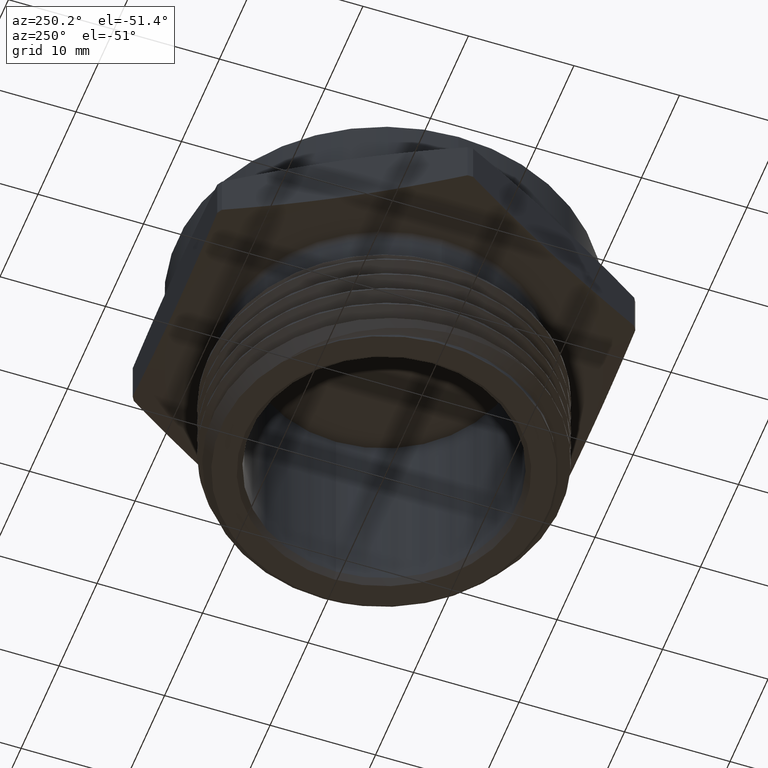
[diagram: clean part render]
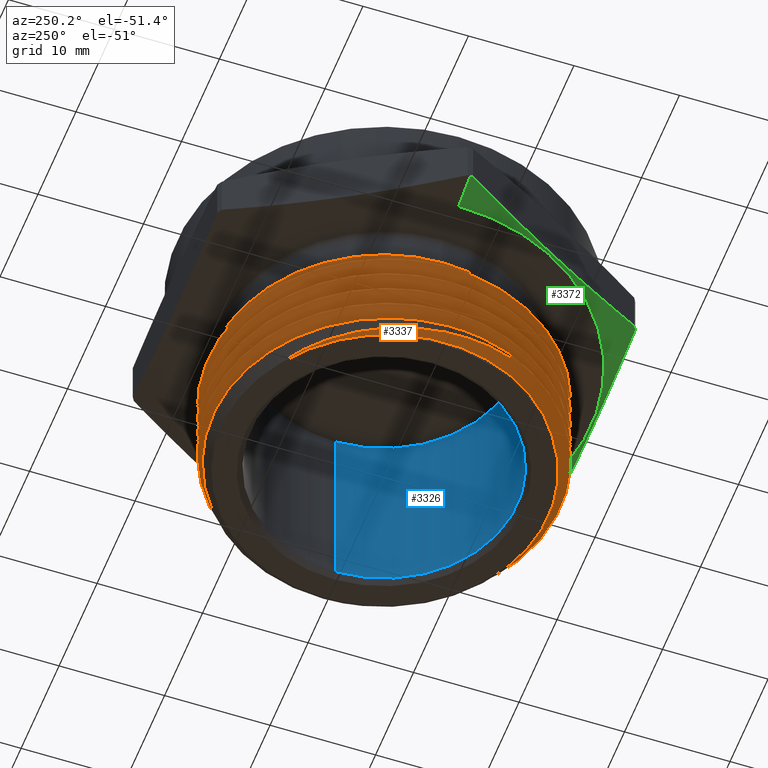
[diagram: same view with three faces highlighted in distinct colors, each labeled with its STEP entity id]
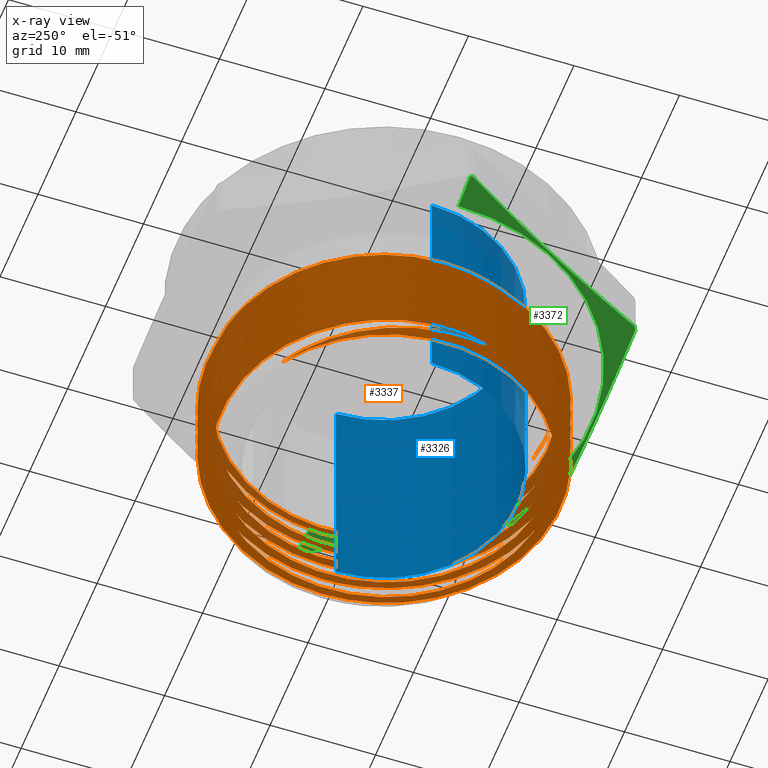
[diagram: x-ray of the same camera — body ghosted, the three highlighted faces saturated]
A machine part, auxiliary view with three faces highlighted in distinct colors.
The next image is the same camera in x-ray (body ghosted, the three faces saturated) — at least one of them is partly hidden behind the body in this view.
Their STEP definitions:

[orange] entity #3337 — the highlighted face is a freeform B-spline surface patch.
#231 = CARTESIAN_POINT ( 'NONE',  ( -0.6066499988437839000, -0.1971125372781596400, -0.6461365732740080900 ) ) ;
#513 = CARTESIAN_POINT ( 'NONE',  ( -0.6066499999999999100, -3.558467075867448100E-009, -0.6503032399406748500 ) ) ;
#514 = CARTESIAN_POINT ( 'NONE',  ( -0.4907901575459472900, -0.3565799261820891100, -0.6419699066073415400 ) ) ;
#515 = CARTESIAN_POINT ( 'NONE',  ( -0.3749303162481106800, -0.5160473150860185300, -0.6378032399406747800 ) ) ;
#516 = CARTESIAN_POINT ( 'NONE',  ( -0.1874651562532585200, -0.5769584367100816200, -0.6336365732740081300 ) ) ;
#517 = CARTESIAN_POINT ( 'NONE',  ( 3.741593667411983200E-009, -0.6378695583341447200, -0.6294699066073414800 ) ) ;
#518 = CARTESIAN_POINT ( 'NONE',  ( 0.1874651630218650800, -0.5769584345108280700, -0.6253032399406748300 ) ) ;
#519 = CARTESIAN_POINT ( 'NONE',  ( 0.3749303223021364700, -0.5160473106875114200, -0.6211365732740082900 ) ) ;
#520 = CARTESIAN_POINT ( 'NONE',  ( 0.4907901617291762200, -0.3565799204243684800, -0.6169699066073415200 ) ) ;
#521 = CARTESIAN_POINT ( 'NONE',  ( 0.6066500011562159200, -0.1971125301612256000, -0.6128032399406748700 ) ) ;
#522 = CARTESIAN_POINT ( 'NONE',  ( 0.6066499999999999100, 3.558467001574249900E-009, -0.6086365732740082200 ) ) ;
#523 = CARTESIAN_POINT ( 'NONE',  ( 0.6066499988437840100, 0.1971125372781595600, -0.6044699066073413500 ) ) ;
#524 = CARTESIAN_POINT ( 'NONE',  ( 0.4907901575459472900, 0.3565799261820890600, -0.6003032399406748000 ) ) ;
#525 = CARTESIAN_POINT ( 'NONE',  ( 0.3749303162481107400, 0.5160473150860185300, -0.5961365732740081500 ) ) ;
#526 = CARTESIAN_POINT ( 'NONE',  ( 0.1874651562532586000, 0.5769584367100816200, -0.5919699066073415000 ) ) ;
#527 = CARTESIAN_POINT ( 'NONE',  ( -3.741593589295492100E-009, 0.6378695583341447200, -0.5878032399406747400 ) ) ;
#528 = CARTESIAN_POINT ( 'NONE',  ( -0.1874651630218650000, 0.5769584345108280700, -0.5836365732740082000 ) ) ;
#529 = CARTESIAN_POINT ( 'NONE',  ( -0.3749303223021363500, 0.5160473106875115300, -0.5794699066073414300 ) ) ;
#530 = CARTESIAN_POINT ( 'NONE',  ( -0.4907901617291762200, 0.3565799204243685300, -0.5753032399406747800 ) ) ;
#531 = CARTESIAN_POINT ( 'NONE',  ( -0.6066500011562159200, 0.1971125301612257400, -0.5711365732740081300 ) ) ;
#532 = CARTESIAN_POINT ( 'NONE',  ( -0.6066499999999999100, -3.558467075867448100E-009, -0.5669699066073414800 ) ) ;
#533 = CARTESIAN_POINT ( 'NONE',  ( -0.6066499988437839000, -0.1971125372781596400, -0.5628032399406748300 ) ) ;
#534 = CARTESIAN_POINT ( 'NONE',  ( -0.4907901575459472900, -0.3565799261820891100, -0.5586365732740081700 ) ) ;
#535 = CARTESIAN_POINT ( 'NONE',  ( -0.3749303162481106800, -0.5160473150860185300, -0.5544699066073415200 ) ) ;
#536 = CARTESIAN_POINT ( 'NONE',  ( -0.1874651562532585200, -0.5769584367100816200, -0.5503032399406747600 ) ) ;
#537 = CARTESIAN_POINT ( 'NONE',  ( 3.741593667411983200E-009, -0.6378695583341447200, -0.5461365732740082200 ) ) ;
#538 = CARTESIAN_POINT ( 'NONE',  ( 0.1874651630218650800, -0.5769584345108280700, -0.5419699066073415700 ) ) ;
#539 = CARTESIAN_POINT ( 'NONE',  ( 0.3749303223021364700, -0.5160473106875114200, -0.5378032399406749200 ) ) ;
#540 = CARTESIAN_POINT ( 'NONE',  ( 0.4907901617291762200, -0.3565799204243684800, -0.5336365732740081500 ) ) ;
#541 = CARTESIAN_POINT ( 'NONE',  ( 0.6066500011562159200, -0.1971125301612256000, -0.5294699066073415000 ) ) ;
#542 = CARTESIAN_POINT ( 'NONE',  ( 0.6066499999999999100, 3.558467001574249900E-009, -0.5253032399406748500 ) ) ;
#543 = CARTESIAN_POINT ( 'NONE',  ( 0.6066499988437840100, 0.1971125372781595600, -0.5211365732740082000 ) ) ;
#544 = CARTESIAN_POINT ( 'NONE',  ( 0.4907901575459472900, 0.3565799261820890600, -0.5169699066073415400 ) ) ;
#545 = CARTESIAN_POINT ( 'NONE',  ( 0.3749303162481107400, 0.5160473150860185300, -0.5128032399406747800 ) ) ;
#546 = CARTESIAN_POINT ( 'NONE',  ( 0.1874651562532586000, 0.5769584367100816200, -0.5086365732740082400 ) ) ;
#547 = CARTESIAN_POINT ( 'NONE',  ( -3.741593589295492100E-009, 0.6378695583341447200, -0.5044699066073414800 ) ) ;
#548 = CARTESIAN_POINT ( 'NONE',  ( -0.1874651630218650000, 0.5769584345108280700, -0.5003032399406748300 ) ) ;
#549 = CARTESIAN_POINT ( 'NONE',  ( -0.3749303223021363500, 0.5160473106875115300, -0.4961365732740080600 ) ) ;
#550 = CARTESIAN_POINT ( 'NONE',  ( -0.4907901617291762200, 0.3565799204243685300, -0.4919699066073415200 ) ) ;
#551 = CARTESIAN_POINT ( 'NONE',  ( -0.6066500011562159200, 0.1971125301612257400, -0.4878032399406748200 ) ) ;
#552 = CARTESIAN_POINT ( 'NONE',  ( -0.6066499999999999100, -3.558467075867448100E-009, -0.4836365732740082200 ) ) ;
#553 = CARTESIAN_POINT ( 'NONE',  ( -0.6066499988437839000, -0.1971125372781596400, -0.4794699066073414000 ) ) ;
#554 = CARTESIAN_POINT ( 'NONE',  ( -0.4907901575459472900, -0.3565799261820891100, -0.4753032399406748600 ) ) ;
#555 = CARTESIAN_POINT ( 'NONE',  ( -0.3749303162481106800, -0.5160473150860185300, -0.4711365732740082100 ) ) ;
#556 = CARTESIAN_POINT ( 'NONE',  ( -0.1874651562532585200, -0.5769584367100816200, -0.4669699066073415000 ) ) ;
#557 = CARTESIAN_POINT ( 'NONE',  ( 3.741593667411983200E-009, -0.6378695583341447200, -0.4628032399406749000 ) ) ;
#558 = CARTESIAN_POINT ( 'NONE',  ( 0.1874651630218650800, -0.5769584345108280700, -0.4586365732740082000 ) ) ;
#559 = CARTESIAN_POINT ( 'NONE',  ( 0.3749303223021364700, -0.5160473106875114200, -0.4544699066073415400 ) ) ;
#560 = CARTESIAN_POINT ( 'NONE',  ( 0.4907901617291762200, -0.3565799204243684800, -0.4503032399406748400 ) ) ;
#561 = CARTESIAN_POINT ( 'NONE',  ( 0.6066500011562159200, -0.1971125301612256000, -0.4461365732740081300 ) ) ;
#562 = CARTESIAN_POINT ( 'NONE',  ( 0.6066499999999999100, 3.558467001574249900E-009, -0.4419699066073414800 ) ) ;
#563 = CARTESIAN_POINT ( 'NONE',  ( 0.6066499988437840100, 0.1971125372781595600, -0.4378032399406748800 ) ) ;
#564 = CARTESIAN_POINT ( 'NONE',  ( 0.4907901575459472900, 0.3565799261820890600, -0.4336365732740082300 ) ) ;
#565 = CARTESIAN_POINT ( 'NONE',  ( 0.3749303162481107400, 0.5160473150860185300, -0.4294699066073415200 ) ) ;
#566 = CARTESIAN_POINT ( 'NONE',  ( 0.1874651562532586000, 0.5769584367100816200, -0.4253032399406748700 ) ) ;
#567 = CARTESIAN_POINT ( 'NONE',  ( -3.741593589295492100E-009, 0.6378695583341447200, -0.4211365732740081100 ) ) ;
#568 = CARTESIAN_POINT ( 'NONE',  ( -0.1874651630218650000, 0.5769584345108280700, -0.4169699066073415100 ) ) ;
#569 = CARTESIAN_POINT ( 'NONE',  ( -0.3749303223021363500, 0.5160473106875115300, -0.4128032399406747500 ) ) ;
#570 = CARTESIAN_POINT ( 'NONE',  ( -0.4907901617291762200, 0.3565799204243685300, -0.4086365732740082100 ) ) ;
#571 = CARTESIAN_POINT ( 'NONE',  ( -0.6066500011562159200, 0.1971125301612257400, -0.4044699066073414500 ) ) ;
#572 = CARTESIAN_POINT ( 'NONE',  ( -0.6066499999999999100, -3.558467075867448100E-009, -0.4003032399406748500 ) ) ;
#573 = CARTESIAN_POINT ( 'NONE',  ( -0.6066499988437839000, -0.1971125372781596400, -0.3961365732740080900 ) ) ;
#574 = CARTESIAN_POINT ( 'NONE',  ( -0.4907901575459472900, -0.3565799261820891100, -0.3919699066073414900 ) ) ;
#575 = CARTESIAN_POINT ( 'NONE',  ( -0.3749303162481106800, -0.5160473150860185300, -0.3878032399406748400 ) ) ;
#576 = CARTESIAN_POINT ( 'NONE',  ( -0.1874651562532585200, -0.5769584367100816200, -0.3836365732740081900 ) ) ;
#577 = CARTESIAN_POINT ( 'NONE',  ( 3.741593667411983200E-009, -0.6378695583341447200, -0.3794699066073415900 ) ) ;
#578 = CARTESIAN_POINT ( 'NONE',  ( 0.1874651630218650800, -0.5769584345108280700, -0.3753032399406748800 ) ) ;
#579 = CARTESIAN_POINT ( 'NONE',  ( 0.3749303223021364700, -0.5160473106875114200, -0.3711365732740082300 ) ) ;
#580 = CARTESIAN_POINT ( 'NONE',  ( 0.4907901617291762200, -0.3565799204243684800, -0.3669699066073415200 ) ) ;
#581 = CARTESIAN_POINT ( 'NONE',  ( 0.6066500011562159200, -0.1971125301612256000, -0.3628032399406748200 ) ) ;
#582 = CARTESIAN_POINT ( 'NONE',  ( 0.6066499999999999100, 3.558467001574249900E-009, -0.3586365732740081600 ) ) ;
#583 = CARTESIAN_POINT ( 'NONE',  ( 0.6066499988437840100, 0.1971125372781595600, -0.3544699066073415700 ) ) ;
#584 = CARTESIAN_POINT ( 'NONE',  ( 0.4907901575459472900, 0.3565799261820890600, -0.3503032399406749200 ) ) ;
#585 = CARTESIAN_POINT ( 'NONE',  ( 0.3749303162481107400, 0.5160473150860185300, -0.3461365732740082100 ) ) ;
#586 = CARTESIAN_POINT ( 'NONE',  ( 0.1874651562532586000, 0.5769584367100816200, -0.3419699066073415600 ) ) ;
#587 = CARTESIAN_POINT ( 'NONE',  ( -3.741593589295492100E-009, 0.6378695583341447200, -0.3378032399406748500 ) ) ;
#588 = CARTESIAN_POINT ( 'NONE',  ( -0.1874651630218650000, 0.5769584345108280700, -0.3336365732740082000 ) ) ;
#589 = CARTESIAN_POINT ( 'NONE',  ( -0.3749303223021363500, 0.5160473106875115300, -0.3294699066073414300 ) ) ;
#590 = CARTESIAN_POINT ( 'NONE',  ( -0.4907901617291762200, 0.3565799204243685300, -0.3253032399406748900 ) ) ;
#591 = CARTESIAN_POINT ( 'NONE',  ( -0.6066500011562159200, 0.1971125301612257400, -0.3211365732740081900 ) ) ;
#592 = CARTESIAN_POINT ( 'NONE',  ( -0.6066499999999999100, -3.558467075867448100E-009, -0.3169699066073415300 ) ) ;
#593 = CARTESIAN_POINT ( 'NONE',  ( -0.6066499988437839000, -0.1971125372781596400, -0.3128032399406748800 ) ) ;
#594 = CARTESIAN_POINT ( 'NONE',  ( -0.4907901575459472900, -0.3565799261820891100, -0.3086365732740081700 ) ) ;
#595 = CARTESIAN_POINT ( 'NONE',  ( -0.3749303162481106800, -0.5160473150860185300, -0.3044699066073414700 ) ) ;
#596 = CARTESIAN_POINT ( 'NONE',  ( -0.1874651562532585200, -0.5769584367100816200, -0.3003032399406748700 ) ) ;
#597 = CARTESIAN_POINT ( 'NONE',  ( 3.741593667411983200E-009, -0.6378695583341447200, -0.2961365732740081600 ) ) ;
#598 = CARTESIAN_POINT ( 'NONE',  ( 0.1874651630218650800, -0.5769584345108280700, -0.2919699066073415100 ) ) ;
#599 = CARTESIAN_POINT ( 'NONE',  ( 0.3749303223021364700, -0.5160473106875114200, -0.2878032399406748000 ) ) ;
#600 = CARTESIAN_POINT ( 'NONE',  ( 0.4907901617291762200, -0.3565799204243684800, -0.2836365732740081500 ) ) ;
#601 = CARTESIAN_POINT ( 'NONE',  ( 0.6066500011562159200, -0.1971125301612256000, -0.2794699066073415600 ) ) ;
#602 = CARTESIAN_POINT ( 'NONE',  ( 0.6066499999999999100, 3.558467001574249900E-009, -0.2753032399406748500 ) ) ;
#603 = CARTESIAN_POINT ( 'NONE',  ( 0.6066499988437840100, 0.1971125372781595600, -0.2711365732740082500 ) ) ;
#604 = CARTESIAN_POINT ( 'NONE',  ( 0.4907901575459472900, 0.3565799261820890600, -0.2669699066073414900 ) ) ;
#605 = CARTESIAN_POINT ( 'NONE',  ( 0.3749303162481107400, 0.5160473150860185300, -0.2628032399406748400 ) ) ;
#606 = CARTESIAN_POINT ( 'NONE',  ( 0.1874651562532586000, 0.5769584367100816200, -0.2586365732740082400 ) ) ;
#607 = CARTESIAN_POINT ( 'NONE',  ( -3.741593589295492100E-009, 0.6378695583341447200, -0.2544699066073414800 ) ) ;
#608 = CARTESIAN_POINT ( 'NONE',  ( -0.1874651630218650000, 0.5769584345108280700, -0.2503032399406748800 ) ) ;
#609 = CARTESIAN_POINT ( 'NONE',  ( -0.3749303223021363500, 0.5160473106875115300, -0.2461365732740081700 ) ) ;
#610 = CARTESIAN_POINT ( 'NONE',  ( -0.4907901617291762200, 0.3565799204243685300, -0.2419699066073415200 ) ) ;
#611 = CARTESIAN_POINT ( 'NONE',  ( -0.6066500011562159200, 0.1971125301612257400, -0.2378032399406748700 ) ) ;
#612 = CARTESIAN_POINT ( 'NONE',  ( -0.6066499999999999100, -3.558467075867448100E-009, -0.2336365732740082200 ) ) ;
#613 = CARTESIAN_POINT ( 'NONE',  ( -0.6066499988437839000, -0.1971125372781596400, -0.2294699066073415100 ) ) ;
#614 = CARTESIAN_POINT ( 'NONE',  ( -0.4907901575459472900, -0.3565799261820891100, -0.2253032399406748600 ) ) ;
#615 = CARTESIAN_POINT ( 'NONE',  ( -0.3749303162481106800, -0.5160473150860185300, -0.2211365732740082100 ) ) ;
#616 = CARTESIAN_POINT ( 'NONE',  ( -0.1874651562532585200, -0.5769584367100816200, -0.2169699066073415800 ) ) ;
#617 = CARTESIAN_POINT ( 'NONE',  ( 3.741593667411983200E-009, -0.6378695583341447200, -0.2128032399406748200 ) ) ;
#618 = CARTESIAN_POINT ( 'NONE',  ( 0.1874651630218650800, -0.5769584345108280700, -0.2086365732740082200 ) ) ;
#619 = CARTESIAN_POINT ( 'NONE',  ( 0.3749303223021364700, -0.5160473106875114200, -0.2044699066073415400 ) ) ;
#620 = CARTESIAN_POINT ( 'NONE',  ( 0.4907901617291762200, -0.3565799204243684800, -0.2003032399406748700 ) ) ;
#621 = CARTESIAN_POINT ( 'NONE',  ( 0.6066500011562159200, -0.1971125301612256000, -0.1961365732740082400 ) ) ;
#622 = CARTESIAN_POINT ( 'NONE',  ( 0.6066499999999999100, 3.558467001574249900E-009, -0.1919699066073415600 ) ) ;
#623 = CARTESIAN_POINT ( 'NONE',  ( 0.6066499988437840100, 0.1971125372781595600, -0.1878032399406748500 ) ) ;
#624 = CARTESIAN_POINT ( 'NONE',  ( 0.4907901575459472900, 0.3565799261820890600, -0.1836365732740082000 ) ) ;
#625 = CARTESIAN_POINT ( 'NONE',  ( 0.3749303162481107400, 0.5160473150860185300, -0.1794699066073415500 ) ) ;
#626 = CARTESIAN_POINT ( 'NONE',  ( 0.1874651562532586000, 0.5769584367100816200, -0.1753032399406748400 ) ) ;
#627 = CARTESIAN_POINT ( 'NONE',  ( -3.741593589295492100E-009, 0.6378695583341447200, -0.1711365732740081600 ) ) ;
#628 = CARTESIAN_POINT ( 'NONE',  ( -0.1874651630218650000, 0.5769584345108280700, -0.1669699066073415700 ) ) ;
#629 = CARTESIAN_POINT ( 'NONE',  ( -0.3749303223021363500, 0.5160473106875115300, -0.1628032399406748300 ) ) ;
#630 = CARTESIAN_POINT ( 'NONE',  ( -0.4907901617291762200, 0.3565799204243685300, -0.1586365732740082100 ) ) ;
#631 = CARTESIAN_POINT ( 'NONE',  ( -0.6066500011562159200, 0.1971125301612257400, -0.1544699066073415300 ) ) ;
#632 = CARTESIAN_POINT ( 'NONE',  ( -0.6066499999999999100, -3.558467075867448100E-009, -0.1503032399406748500 ) ) ;
#633 = CARTESIAN_POINT ( 'NONE',  ( -0.6066499988437839000, -0.1971125372781596400, -0.1461365732740082200 ) ) ;
#634 = CARTESIAN_POINT ( 'NONE',  ( -0.4907901575459472900, -0.3565799261820891100, -0.1419699066073415400 ) ) ;
#635 = CARTESIAN_POINT ( 'NONE',  ( -0.3749303162481106800, -0.5160473150860185300, -0.1378032399406749200 ) ) ;
#636 = CARTESIAN_POINT ( 'NONE',  ( -0.1874651562532585200, -0.5769584367100816200, -0.1336365732740081900 ) ) ;
#637 = CARTESIAN_POINT ( 'NONE',  ( 3.741593667411983200E-009, -0.6378695583341447200, -0.1294699066073415300 ) ) ;
#638 = CARTESIAN_POINT ( 'NONE',  ( 0.1874651630218650800, -0.5769584345108280700, -0.1253032399406749100 ) ) ;
#639 = CARTESIAN_POINT ( 'NONE',  ( 0.3749303223021364700, -0.5160473106875114200, -0.1211365732740081900 ) ) ;
#640 = CARTESIAN_POINT ( 'NONE',  ( 0.4907901617291762200, -0.3565799204243684800, -0.1169699066073415500 ) ) ;
#641 = CARTESIAN_POINT ( 'NONE',  ( 0.6066500011562159200, -0.1971125301612256000, -0.1128032399406748800 ) ) ;
#642 = CARTESIAN_POINT ( 'NONE',  ( 0.6066499999999999100, 3.558467001574249900E-009, -0.1086365732740081900 ) ) ;
#643 = CARTESIAN_POINT ( 'NONE',  ( 0.6066499988437840100, 0.1971125372781595600, -0.1044699066073415400 ) ) ;
#644 = CARTESIAN_POINT ( 'NONE',  ( 0.4907901575459472900, 0.3565799261820890600, -0.1003032399406749000 ) ) ;
#645 = CARTESIAN_POINT ( 'NONE',  ( 0.3749303162481107400, 0.5160473150860185300, -0.09613657327400818000 ) ) ;
#646 = CARTESIAN_POINT ( 'NONE',  ( 0.1874651562532586000, 0.5769584367100816200, -0.09196990660734154200 ) ) ;
#647 = CARTESIAN_POINT ( 'NONE',  ( -3.741593589295492100E-009, 0.6378695583341447200, -0.08780323994067486300 ) ) ;
#648 = CARTESIAN_POINT ( 'NONE',  ( -0.1874651630218650000, 0.5769584345108280700, -0.08363657327400825200 ) ) ;
#649 = CARTESIAN_POINT ( 'NONE',  ( -0.3749303223021363500, 0.5160473106875115300, -0.07946990660734153100 ) ) ;
#650 = CARTESIAN_POINT ( 'NONE',  ( -0.4907901617291762200, 0.3565799204243685300, -0.07530323994067489300 ) ) ;
#651 = CARTESIAN_POINT ( 'NONE',  ( -0.6066500011562159200, 0.1971125301612257400, -0.07113657327400824100 ) ) ;
#652 = CARTESIAN_POINT ( 'NONE',  ( -0.6066499999999999100, -3.558467075867448100E-009, -0.06696990660734153400 ) ) ;
#653 = CARTESIAN_POINT ( 'NONE',  ( -0.6562500000000000000, -3.849409080257171600E-009, -0.6216666665888693800 ) ) ;
#654 = CARTESIAN_POINT ( 'NONE',  ( -0.6562499987492511600, -0.2132285545022538100, -0.6174999999222027200 ) ) ;
#655 = CARTESIAN_POINT ( 'NONE',  ( -0.5309174002959333700, -0.3857340749311729000, -0.6133333332555360700 ) ) ;
#656 = CARTESIAN_POINT ( 'NONE',  ( -0.4055848018426155300, -0.5582395953600918200, -0.6091666665888693100 ) ) ;
#657 = CARTESIAN_POINT ( 'NONE',  ( -0.2027923988975536600, -0.6241308400082272700, -0.6049999999222027700 ) ) ;
#658 = CARTESIAN_POINT ( 'NONE',  ( 4.047508191278521600E-009, -0.6900220846563627200, -0.6008333332555359000 ) ) ;
#659 = CARTESIAN_POINT ( 'NONE',  ( 0.2027924062195647900, -0.6241308376291617700, -0.5966666665888693500 ) ) ;
#660 = CARTESIAN_POINT ( 'NONE',  ( 0.4055848083916214200, -0.5582395906019604900, -0.5924999999222027000 ) ) ;
#661 = CARTESIAN_POINT ( 'NONE',  ( 0.5309174048211851000, -0.3857340687026982200, -0.5883333332555360500 ) ) ;
#662 = CARTESIAN_POINT ( 'NONE',  ( 0.6562500012507488400, -0.2132285468034357300, -0.5841666665888692900 ) ) ;
#663 = CARTESIAN_POINT ( 'NONE',  ( 0.6562500000000000000, 3.849408999889726000E-009, -0.5799999999222027500 ) ) ;
#664 = CARTESIAN_POINT ( 'NONE',  ( 0.6562499987492512700, 0.2132285545022537300, -0.5758333332555359800 ) ) ;
#665 = CARTESIAN_POINT ( 'NONE',  ( 0.5309174002959333700, 0.3857340749311728400, -0.5716666665888693300 ) ) ;
#666 = CARTESIAN_POINT ( 'NONE',  ( 0.4055848018426156400, 0.5582395953600917100, -0.5674999999222027900 ) ) ;
#667 = CARTESIAN_POINT ( 'NONE',  ( 0.2027923988975537100, 0.6241308400082272700, -0.5633333332555361400 ) ) ;
#668 = CARTESIAN_POINT ( 'NONE',  ( -4.047508106775187000E-009, 0.6900220846563627200, -0.5591666665888693800 ) ) ;
#669 = CARTESIAN_POINT ( 'NONE',  ( -0.2027924062195647100, 0.6241308376291617700, -0.5549999999222027200 ) ) ;
#670 = CARTESIAN_POINT ( 'NONE',  ( -0.4055848083916213700, 0.5582395906019604900, -0.5508333332555360700 ) ) ;
#671 = CARTESIAN_POINT ( 'NONE',  ( -0.5309174048211851000, 0.3857340687026982700, -0.5466666665888694200 ) ) ;
#672 = CARTESIAN_POINT ( 'NONE',  ( -0.6562500012507488400, 0.2132285468034359200, -0.5424999999222027700 ) ) ;
#673 = CARTESIAN_POINT ( 'NONE',  ( -0.6562500000000000000, -3.849409080257171600E-009, -0.5383333332555361200 ) ) ;
#674 = CARTESIAN_POINT ( 'NONE',  ( -0.6562499987492511600, -0.2132285545022538100, -0.5341666665888694700 ) ) ;
#675 = CARTESIAN_POINT ( 'NONE',  ( -0.5309174002959333700, -0.3857340749311729000, -0.5299999999222027000 ) ) ;
#676 = CARTESIAN_POINT ( 'NONE',  ( -0.4055848018426155300, -0.5582395953600918200, -0.5258333332555359400 ) ) ;
#677 = CARTESIAN_POINT ( 'NONE',  ( -0.2027923988975536600, -0.6241308400082272700, -0.5216666665888694000 ) ) ;
#678 = CARTESIAN_POINT ( 'NONE',  ( 4.047508191278521600E-009, -0.6900220846563627200, -0.5174999999222026400 ) ) ;
#679 = CARTESIAN_POINT ( 'NONE',  ( 0.2027924062195647900, -0.6241308376291617700, -0.5133333332555361000 ) ) ;
#680 = CARTESIAN_POINT ( 'NONE',  ( 0.4055848083916214200, -0.5582395906019604900, -0.5091666665888693300 ) ) ;
#681 = CARTESIAN_POINT ( 'NONE',  ( 0.5309174048211851000, -0.3857340687026982200, -0.5049999999222026800 ) ) ;
#682 = CARTESIAN_POINT ( 'NONE',  ( 0.6562500012507488400, -0.2132285468034357300, -0.5008333332555359200 ) ) ;
#683 = CARTESIAN_POINT ( 'NONE',  ( 0.6562500000000000000, 3.849408999889726000E-009, -0.4966666665888693800 ) ) ;
#760 = CARTESIAN_POINT ( 'NONE',  ( -0.6562500000000002200, 8.941440619697218100E-016, -0.2049999999974235500 ) ) ;
#767 = CARTESIAN_POINT ( 'NONE',  ( -0.6562499987492511600, -0.2132285545022538100, -0.2008333332555360700 ) ) ;
#772 = CARTESIAN_POINT ( 'NONE',  ( -0.5309174002959333700, -0.3857340749311729000, -0.2799999999222027000 ) ) ;
#773 = CARTESIAN_POINT ( 'NONE',  ( -0.5309174002959333700, -0.3857340749311729000, -0.1966666665888694200 ) ) ;
#774 = CARTESIAN_POINT ( 'NONE',  ( -0.4055848018426155300, -0.5582395953600918200, -0.1924999999222027900 ) ) ;
#775 = CARTESIAN_POINT ( 'NONE',  ( -0.2027923988975536600, -0.6241308400082272700, -0.1883333332555361100 ) ) ;
#776 = CARTESIAN_POINT ( 'NONE',  ( 4.047508191278521600E-009, -0.6900220846563628300, -0.1841666665888693800 ) ) ;
#777 = CARTESIAN_POINT ( 'NONE',  ( 0.2027924062195647900, -0.6241308376291617700, -0.1799999999222027800 ) ) ;
#778 = CARTESIAN_POINT ( 'NONE',  ( 0.2875868537083424700, -0.5965794509589763500, -0.1782577739113380100 ) ) ;
#779 = CARTESIAN_POINT ( 'NONE',  ( 0.3619571796122916200, -0.5474039300435423700, -0.1764276695296617700 ) ) ;
#791 = CARTESIAN_POINT ( 'NONE',  ( -0.6562499987492511600, -0.2132285545022538100, -0.2841666665888694700 ) ) ;
#792 = CARTESIAN_POINT ( 'NONE',  ( -0.6562500000000002200, 8.941440914828094400E-016, -0.2883333333307568900 ) ) ;
#793 = CARTESIAN_POINT ( 'NONE',  ( -0.4055848018426155300, -0.5582395953600918200, -0.2758333332555360500 ) ) ;
#794 = CARTESIAN_POINT ( 'NONE',  ( -0.2027923988975536600, -0.6241308400082272700, -0.2716666665888694500 ) ) ;
#795 = CARTESIAN_POINT ( 'NONE',  ( 4.047508191278521600E-009, -0.6900220846563628300, -0.2674999999222026900 ) ) ;
#796 = CARTESIAN_POINT ( 'NONE',  ( 0.2027924062195647900, -0.6241308376291617700, -0.2633333332555361000 ) ) ;
#797 = CARTESIAN_POINT ( 'NONE',  ( 0.4055848083916214800, -0.5582395906019604900, -0.2591666665888693900 ) ) ;
#798 = CARTESIAN_POINT ( 'NONE',  ( 0.5309174048211851000, -0.3857340687026982200, -0.2549999999222027400 ) ) ;
#799 = CARTESIAN_POINT ( 'NONE',  ( 0.6562500012507488400, -0.2132285468034357500, -0.2508333332555360800 ) ) ;
#800 = CARTESIAN_POINT ( 'NONE',  ( 0.6562500000000002200, -9.745115035548978000E-016, -0.2466666666640902100 ) ) ;
#801 = CARTESIAN_POINT ( 'NONE',  ( -0.5309174002959333700, -0.3857340749311729000, -0.3633333332555360200 ) ) ;
#813 = CARTESIAN_POINT ( 'NONE',  ( -0.6562499987492511600, -0.2132285545022538100, -0.3674999999222027200 ) ) ;
#814 = CARTESIAN_POINT ( 'NONE',  ( -0.6562500000000002200, -6.818694718618985700E-016, -0.3716666666640901000 ) ) ;
#815 = CARTESIAN_POINT ( 'NONE',  ( -0.4055848018426155300, -0.5582395953600918200, -0.3591666665888693700 ) ) ;
#816 = CARTESIAN_POINT ( 'NONE',  ( -0.2027923988975536600, -0.6241308400082272700, -0.3549999999222027700 ) ) ;
#817 = CARTESIAN_POINT ( 'NONE',  ( 4.047508191278521600E-009, -0.6900220846563628300, -0.3508333332555360100 ) ) ;
#818 = CARTESIAN_POINT ( 'NONE',  ( 0.2027924062195647900, -0.6241308376291617700, -0.3466666665888694700 ) ) ;
#819 = CARTESIAN_POINT ( 'NONE',  ( 0.4055848083916214800, -0.5582395906019604900, -0.3424999999222026500 ) ) ;
#820 = CARTESIAN_POINT ( 'NONE',  ( 0.5309174048211851000, -0.3857340687026982200, -0.3383333332555361100 ) ) ;
#821 = CARTESIAN_POINT ( 'NONE',  ( 0.6562500012507488400, -0.2132285468034357500, -0.3341666665888692900 ) ) ;
#822 = CARTESIAN_POINT ( 'NONE',  ( 0.6562500000000002200, 6.015020447788432800E-016, -0.3299999999974234700 ) ) ;
#823 = CARTESIAN_POINT ( 'NONE',  ( -0.5309174002959333700, -0.3857340749311729000, -0.4466666665888693900 ) ) ;
#833 = CARTESIAN_POINT ( 'NONE',  ( -0.6562499987492511600, -0.2132285545022538100, -0.4508333332555360400 ) ) ;
#834 = CARTESIAN_POINT ( 'NONE',  ( -0.6562500000000002200, -6.818694866184424800E-016, -0.4549999999974234700 ) ) ;
#835 = CARTESIAN_POINT ( 'NONE',  ( -0.4055848018426155300, -0.5582395953600918200, -0.4424999999222026200 ) ) ;
#836 = CARTESIAN_POINT ( 'NONE',  ( -0.2027923988975536600, -0.6241308400082272700, -0.4383333332555360300 ) ) ;
#837 = CARTESIAN_POINT ( 'NONE',  ( 4.047508191278521600E-009, -0.6900220846563628300, -0.4341666665888693200 ) ) ;
#838 = CARTESIAN_POINT ( 'NONE',  ( 0.2027924062195647900, -0.6241308376291617700, -0.4299999999222027800 ) ) ;
#839 = CARTESIAN_POINT ( 'NONE',  ( 0.4055848083916214800, -0.5582395906019604900, -0.4258333332555360200 ) ) ;
#840 = CARTESIAN_POINT ( 'NONE',  ( 0.5309174048211851000, -0.3857340687026982200, -0.4216666665888694200 ) ) ;
#841 = CARTESIAN_POINT ( 'NONE',  ( 0.6562500012507488400, -0.2132285468034357500, -0.4174999999222026000 ) ) ;
#842 = CARTESIAN_POINT ( 'NONE',  ( 0.6562500000000002200, 6.015020447788432800E-016, -0.4133333333307567200 ) ) ;
#912 = CARTESIAN_POINT ( 'NONE',  ( -0.6215329153199463700, 5.709922702190077100E-013, -0.1417105848496098800 ) ) ;
#922 = CARTESIAN_POINT ( 'NONE',  ( -0.6218038588298322500, 0.02071372991814923700, -0.1419815283595149100 ) ) ;
#927 = CARTESIAN_POINT ( 'NONE',  ( -0.4055848083916213700, 0.5582395906019604900, -0.4674999999222027000 ) ) ;
#929 = CARTESIAN_POINT ( 'NONE',  ( -0.6210470801214494900, 0.04150238621615854500, -0.1422574870576855700 ) ) ;
#953 = EDGE_LOOP ( 'NONE', ( #1160, #1161, #1162, #1163, #1164, #1165, #1166, #1167, #1168, #1169, #1170, #1171, #1172, #1173, #1174 ) ) ;
#1160 = ORIENTED_EDGE ( 'NONE', *, *, #1579, .F. ) ;
#1161 = ORIENTED_EDGE ( 'NONE', *, *, #1261, .T. ) ;
#1162 = ORIENTED_EDGE ( 'NONE', *, *, #1246, .T. ) ;
#1163 = ORIENTED_EDGE ( 'NONE', *, *, #1264, .T. ) ;
#1164 = ORIENTED_EDGE ( 'NONE', *, *, #1526, .T. ) ;
#1165 = ORIENTED_EDGE ( 'NONE', *, *, #1524, .T. ) ;
#1166 = ORIENTED_EDGE ( 'NONE', *, *, #1267, .T. ) ;
#1167 = ORIENTED_EDGE ( 'NONE', *, *, #1299, .F. ) ;
#1168 = ORIENTED_EDGE ( 'NONE', *, *, #1563, .F. ) ;
#1169 = ORIENTED_EDGE ( 'NONE', *, *, #1301, .F. ) ;
#1170 = ORIENTED_EDGE ( 'NONE', *, *, #1575, .F. ) ;
#1171 = ORIENTED_EDGE ( 'NONE', *, *, #1303, .F. ) ;
#1172 = ORIENTED_EDGE ( 'NONE', *, *, #1571, .F. ) ;
#1173 = ORIENTED_EDGE ( 'NONE', *, *, #1305, .F. ) ;
#1174 = ORIENTED_EDGE ( 'NONE', *, *, #1567, .F. ) ;
#1246 = EDGE_CURVE ( 'NONE', #1640, #1608, #2930, .T. ) ;
#1261 = EDGE_CURVE ( 'NONE', #3283, #1640, #2931, .T. ) ;
#1264 = EDGE_CURVE ( 'NONE', #1608, #1583, #2940, .T. ) ;
#1267 = EDGE_CURVE ( 'NONE', #1599, #1603, #2935, .T. ) ;
#1299 = EDGE_CURVE ( 'NONE', #3270, #1603, #1841, .T. ) ;
#1301 = EDGE_CURVE ( 'NONE', #3280, #3269, #1843, .T. ) ;
#1303 = EDGE_CURVE ( 'NONE', #3276, #3279, #1837, .T. ) ;
#1305 = EDGE_CURVE ( 'NONE', #3272, #3275, #3260, .T. ) ;
#1495 =( BOUNDED_CURVE ( )  B_SPLINE_CURVE ( 2, ( #2886, #2887, #2894, #2895, #2896, #2897, #2898, #2899, #2900, #2901, #2902 ),
 .UNSPECIFIED., .F., .T. ) 
 B_SPLINE_CURVE_WITH_KNOTS ( ( 3, 2, 2, 2, 2, 3 ),
 ( 0.6428571427215570300, 0.6571428571428571400, 0.6714285714285713700, 0.6857142857142857200, 0.6999999999999999600, 0.7142857141501284300 ),
 .UNSPECIFIED. ) 
 CURVE ( )  GEOMETRIC_REPRESENTATION_ITEM ( )  RATIONAL_B_SPLINE_CURVE ( ( 1.000000000000000000, 0.9510565162951535300, 1.000000000000000000, 0.9510565162951535300, 1.000000000000000000, 0.9510565162951535300, 1.000000000000000000, 0.9510565162951535300, 1.000000000000000000, 0.9510565162951535300, 1.000000000000000000 ) ) 
 REPRESENTATION_ITEM ( '' )  );
#1497 =( BOUNDED_CURVE ( )  B_SPLINE_CURVE ( 2, ( #2905, #2904, #2920, #2921, #2922, #2923, #2924, #927, #2120, #2121, #2122 ),
 .UNSPECIFIED., .F., .F. ) 
 B_SPLINE_CURVE_WITH_KNOTS ( ( 3, 2, 2, 2, 2, 3 ),
 ( 0.2142857141501284300, 0.2285714285714285600, 0.2428571428571428500, 0.2571428571428571200, 0.2714285714285714100, 0.2857142855786998800 ),
 .UNSPECIFIED. ) 
 CURVE ( )  GEOMETRIC_REPRESENTATION_ITEM ( )  RATIONAL_B_SPLINE_CURVE ( ( 1.000000000000000000, 0.9510565162951535300, 1.000000000000000000, 0.9510565162951535300, 1.000000000000000000, 0.9510565162951535300, 1.000000000000000000, 0.9510565162951535300, 1.000000000000000000, 0.9510565162951535300, 1.000000000000000000 ) ) 
 REPRESENTATION_ITEM ( '' )  );
#1499 =( BOUNDED_CURVE ( )  B_SPLINE_CURVE ( 2, ( #2125, #2124, #2141, #2142, #2143, #2144, #2145, #2146, #2147, #2148, #2149 ),
 .UNSPECIFIED., .F., .F. ) 
 B_SPLINE_CURVE_WITH_KNOTS ( ( 3, 2, 2, 2, 2, 3 ),
 ( 0.3571428570072713300, 0.3714285714285714400, 0.3857142857142857300, 0.4000000000000000200, 0.4142857142857143100, 0.4285714284358427300 ),
 .UNSPECIFIED. ) 
 CURVE ( )  GEOMETRIC_REPRESENTATION_ITEM ( )  RATIONAL_B_SPLINE_CURVE ( ( 1.000000000000000000, 0.9510565162951535300, 1.000000000000000000, 0.9510565162951535300, 1.000000000000000000, 0.9510565162951535300, 1.000000000000000000, 0.9510565162951535300, 1.000000000000000000, 0.9510565162951535300, 1.000000000000000000 ) ) 
 REPRESENTATION_ITEM ( '' )  );
#1501 =( BOUNDED_CURVE ( )  B_SPLINE_CURVE ( 2, ( #2152, #2151, #2167, #2168, #2169, #2170, #2171, #2172, #2173, #2174, #2175 ),
 .UNSPECIFIED., .F., .T. ) 
 B_SPLINE_CURVE_WITH_KNOTS ( ( 3, 2, 2, 2, 2, 3 ),
 ( 0.4999999998644141800, 0.5142857142857142300, 0.5285714285714285800, 0.5428571428571428200, 0.5571428571428571600, 0.5714285712929855200 ),
 .UNSPECIFIED. ) 
 CURVE ( )  GEOMETRIC_REPRESENTATION_ITEM ( )  RATIONAL_B_SPLINE_CURVE ( ( 1.000000000000000000, 0.9510565162951535300, 1.000000000000000000, 0.9510565162951535300, 1.000000000000000000, 0.9510565162951535300, 1.000000000000000000, 0.9510565162951535300, 1.000000000000000000, 0.9510565162951535300, 1.000000000000000000 ) ) 
 REPRESENTATION_ITEM ( '' )  );
#1503 =( BOUNDED_CURVE ( )  B_SPLINE_CURVE ( 2, ( #2178, #2177, #2193, #2194, #2195, #2196, #2197, #2198, #2199, #2200, #2201 ),
 .UNSPECIFIED., .F., .F. ) 
 B_SPLINE_CURVE_WITH_KNOTS ( ( 3, 2, 2, 2, 2, 3 ),
 ( 0.1564270591818928400, 0.1571428571428571400, 0.1714285714285714300, 0.1857142857142857200, 0.2000000000000000100, 0.2142857141501284300 ),
 .UNSPECIFIED. ) 
 CURVE ( )  GEOMETRIC_REPRESENTATION_ITEM ( )  RATIONAL_B_SPLINE_CURVE ( ( 0.9953410443027330700, 0.9975476447913107500, 1.000000000000000000, 0.9510565162951535300, 1.000000000000000000, 0.9510565162951535300, 1.000000000000000000, 0.9510565162951535300, 1.000000000000000000, 0.9510565162951535300, 1.000000000000000000 ) ) 
 REPRESENTATION_ITEM ( '' )  );
#1508 =( BOUNDED_SURFACE ( )  B_SPLINE_SURFACE ( 1, 2, ( 
 ( #513, #231, #514, #515, #516, #517, #518, #519, #520, #521, #522, #523, #524, #525, #526, #527, #528, #529, #530, #531, #532, #533, #534, #535, #536, #537, #538, #539, #540, #541, #542, #543, #544, #545, #546, #547, #548, #549, #550, #551, #552, #553, #554, #555, #556, #557, #558, #559, #560, #561, #562, #563, #564, #565, #566, #567, #568, #569, #570, #571, #572, #573, #574, #575, #576, #577, #578, #579, #580, #581, #582, #583, #584, #585, #586, #587, #588, #589, #590, #591, #592, #593, #594, #595, #596, #597, #598, #599, #600, #601, #602, #603, #604, #605, #606, #607, #608, #609, #610, #611, #612, #613, #614, #615, #616, #617, #618, #619, #620, #621, #622, #623, #624, #625, #626, #627, #628, #629, #630, #631, #632, #633, #634, #635, #636, #637, #638, #639, #640, #641, #642, #643, #644, #645, #646, #647, #648, #649, #650, #651, #652 ),
 ( #653, #654, #655, #656, #657, #658, #659, #660, #661, #662, #663, #664, #665, #666, #667, #668, #669, #670, #671, #672, #673, #674, #675, #676, #677, #678, #679, #680, #681, #682, #683, #2349, #1845, #1846, #1847, #1848, #1849, #1850, #1851, #1852, #1853, #1854, #1855, #1856, #1857, #1858, #1859, #1860, #1861, #1862, #1863, #1864, #1865, #1866, #1867, #1868, #1869, #1870, #1871, #1872, #1873, #1874, #1875, #1876, #1877, #1878, #1879, #1880, #1881, #1882, #1883, #1884, #1885, #1886, #1887, #1888, #1889, #1890, #1891, #1892, #1893, #1894, #1895, #1896, #1897, #1898, #1899, #1900, #1901, #1902, #1903, #1904, #1905, #1906, #1907, #1908, #1909, #1910, #1911, #1912, #1913, #1914, #1915, #1916, #1917, #1918, #1919, #1920, #1921, #1922, #1923, #1924, #1925, #1926, #1927, #1928, #1929, #1930, #1931, #1932, #1933, #1934, #1935, #1936, #1937, #1938, #1939, #1940, #1941, #1942, #1943, #1944, #1945, #1946, #1947, #1948, #1949, #1950, #1951, #1952, #1953 ) ),
 .UNSPECIFIED., .F., .F., .F. ) 
 B_SPLINE_SURFACE_WITH_KNOTS ( ( 2, 2 ),
 ( 3, 2, 2, 2, 2, 2, 2, 2, 2, 2, 2, 2, 2, 2, 2, 2, 2, 2, 2, 2, 2, 2, 2, 2, 2, 2, 2, 2, 2, 2, 2, 2, 2, 2, 2, 2, 2, 2, 2, 2, 2, 2, 2, 2, 2, 2, 2, 2, 2, 2, 2, 2, 2, 2, 2, 2, 2, 2, 2, 2, 2, 2, 2, 2, 2, 2, 2, 2, 2, 2, 3 ),
 ( 0.0000000000000000000, 1.000000000000000000 ),
 ( 0.0000000000000000000, 0.01428571428571428500, 0.02857142857142857100, 0.04285714285714285800, 0.05714285714285714100, 0.07142857142857142500, 0.08571428571428571500, 0.1000000000000000100, 0.1142857142857142800, 0.1285714285714285600, 0.1428571428571428500, 0.1571428571428571400, 0.1714285714285714300, 0.1857142857142857200, 0.2000000000000000100, 0.2142857142857142700, 0.2285714285714285600, 0.2428571428571428500, 0.2571428571428571200, 0.2714285714285714100, 0.2857142857142857000, 0.2999999999999999900, 0.3142857142857142800, 0.3285714285714285700, 0.3428571428571428600, 0.3571428571428571500, 0.3714285714285714400, 0.3857142857142857300, 0.4000000000000000200, 0.4142857142857143100, 0.4285714285714285500, 0.4428571428571428400, 0.4571428571428571300, 0.4714285714285714200, 0.4857142857142857100, 0.5000000000000000000, 0.5142857142857142300, 0.5285714285714285800, 0.5428571428571428200, 0.5571428571428571600, 0.5714285714285714000, 0.5857142857142857400, 0.5999999999999999800, 0.6142857142857143200, 0.6285714285714285600, 0.6428571428571429000, 0.6571428571428571400, 0.6714285714285713700, 0.6857142857142857200, 0.6999999999999999600, 0.7142857142857143000, 0.7285714285714285400, 0.7428571428571428800, 0.7571428571428571200, 0.7714285714285714600, 0.7857142857142857000, 0.8000000000000000400, 0.8142857142857142800, 0.8285714285714286300, 0.8428571428571428600, 0.8571428571428571000, 0.8714285714285714400, 0.8857142857142856800, 0.9000000000000000200, 0.9142857142857142600, 0.9285714285714286000, 0.9428571428571428400, 0.9571428571428571800, 0.9714285714285714200, 0.9857142857142857700, 1.000000000000000000 ),
 .UNSPECIFIED. ) 
 GEOMETRIC_REPRESENTATION_ITEM ( )  RATIONAL_B_SPLINE_SURFACE ( (
 ( 1.000000000000000000, 0.9510565162951535300, 1.000000000000000000, 0.9510565162951535300, 1.000000000000000000, 0.9510565162951535300, 1.000000000000000000, 0.9510565162951535300, 1.000000000000000000, 0.9510565162951535300, 1.000000000000000000, 0.9510565162951535300, 1.000000000000000000, 0.9510565162951535300, 1.000000000000000000, 0.9510565162951535300, 1.000000000000000000, 0.9510565162951535300, 1.000000000000000000, 0.9510565162951535300, 1.000000000000000000, 0.9510565162951535300, 1.000000000000000000, 0.9510565162951535300, 1.000000000000000000, 0.9510565162951535300, 1.000000000000000000, 0.9510565162951535300, 1.000000000000000000, 0.9510565162951535300, 1.000000000000000000, 0.9510565162951535300, 1.000000000000000000, 0.9510565162951535300, 1.000000000000000000, 0.9510565162951535300, 1.000000000000000000, 0.9510565162951535300, 1.000000000000000000, 0.9510565162951535300, 1.000000000000000000, 0.9510565162951535300, 1.000000000000000000, 0.9510565162951535300, 1.000000000000000000, 0.9510565162951535300, 1.000000000000000000, 0.9510565162951535300, 1.000000000000000000, 0.9510565162951535300, 1.000000000000000000, 0.9510565162951535300, 1.000000000000000000, 0.9510565162951535300, 1.000000000000000000, 0.9510565162951535300, 1.000000000000000000, 0.9510565162951535300, 1.000000000000000000, 0.9510565162951535300, 1.000000000000000000, 0.9510565162951535300, 1.000000000000000000, 0.9510565162951535300, 1.000000000000000000, 0.9510565162951535300, 1.000000000000000000, 0.9510565162951535300, 1.000000000000000000, 0.9510565162951535300, 1.000000000000000000, 0.9510565162951535300, 1.000000000000000000, 0.9510565162951535300, 1.000000000000000000, 0.9510565162951535300, 1.000000000000000000, 0.9510565162951535300, 1.000000000000000000, 0.9510565162951535300, 1.000000000000000000, 0.9510565162951535300, 1.000000000000000000, 0.9510565162951535300, 1.000000000000000000, 0.9510565162951535300, 1.000000000000000000, 0.9510565162951535300, 1.000000000000000000, 0.9510565162951535300, 1.000000000000000000, 0.9510565162951535300, 1.000000000000000000, 0.9510565162951535300, 1.000000000000000000, 0.9510565162951535300, 1.000000000000000000, 0.9510565162951535300, 1.000000000000000000, 0.9510565162951535300, 1.000000000000000000, 0.9510565162951535300, 1.000000000000000000, 0.9510565162951535300, 1.000000000000000000, 0.9510565162951535300, 1.000000000000000000, 0.9510565162951535300, 1.000000000000000000, 0.9510565162951535300, 1.000000000000000000, 0.9510565162951535300, 1.000000000000000000, 0.9510565162951535300, 1.000000000000000000, 0.9510565162951535300, 1.000000000000000000, 0.9510565162951535300, 1.000000000000000000, 0.9510565162951535300, 1.000000000000000000, 0.9510565162951535300, 1.000000000000000000, 0.9510565162951535300, 1.000000000000000000, 0.9510565162951535300, 1.000000000000000000, 0.9510565162951535300, 1.000000000000000000, 0.9510565162951535300, 1.000000000000000000, 0.9510565162951535300, 1.000000000000000000, 0.9510565162951535300, 1.000000000000000000, 0.9510565162951535300, 1.000000000000000000, 0.9510565162951535300, 1.000000000000000000, 0.9510565162951535300, 1.000000000000000000),
 ( 1.000000000000000000, 0.9510565162951535300, 1.000000000000000000, 0.9510565162951535300, 1.000000000000000000, 0.9510565162951535300, 1.000000000000000000, 0.9510565162951535300, 1.000000000000000000, 0.9510565162951535300, 1.000000000000000000, 0.9510565162951535300, 1.000000000000000000, 0.9510565162951535300, 1.000000000000000000, 0.9510565162951535300, 1.000000000000000000, 0.9510565162951535300, 1.000000000000000000, 0.9510565162951535300, 1.000000000000000000, 0.9510565162951535300, 1.000000000000000000, 0.9510565162951535300, 1.000000000000000000, 0.9510565162951535300, 1.000000000000000000, 0.9510565162951535300, 1.000000000000000000, 0.9510565162951535300, 1.000000000000000000, 0.9510565162951535300, 1.000000000000000000, 0.9510565162951535300, 1.000000000000000000, 0.9510565162951535300, 1.000000000000000000, 0.9510565162951535300, 1.000000000000000000, 0.9510565162951535300, 1.000000000000000000, 0.9510565162951535300, 1.000000000000000000, 0.9510565162951535300, 1.000000000000000000, 0.9510565162951535300, 1.000000000000000000, 0.9510565162951535300, 1.000000000000000000, 0.9510565162951535300, 1.000000000000000000, 0.9510565162951535300, 1.000000000000000000, 0.9510565162951535300, 1.000000000000000000, 0.9510565162951535300, 1.000000000000000000, 0.9510565162951535300, 1.000000000000000000, 0.9510565162951535300, 1.000000000000000000, 0.9510565162951535300, 1.000000000000000000, 0.9510565162951535300, 1.000000000000000000, 0.9510565162951535300, 1.000000000000000000, 0.9510565162951535300, 1.000000000000000000, 0.9510565162951535300, 1.000000000000000000, 0.9510565162951535300, 1.000000000000000000, 0.9510565162951535300, 1.000000000000000000, 0.9510565162951535300, 1.000000000000000000, 0.9510565162951535300, 1.000000000000000000, 0.9510565162951535300, 1.000000000000000000, 0.9510565162951535300, 1.000000000000000000, 0.9510565162951535300, 1.000000000000000000, 0.9510565162951535300, 1.000000000000000000, 0.9510565162951535300, 1.000000000000000000, 0.9510565162951535300, 1.000000000000000000, 0.9510565162951535300, 1.000000000000000000, 0.9510565162951535300, 1.000000000000000000, 0.9510565162951535300, 1.000000000000000000, 0.9510565162951535300, 1.000000000000000000, 0.9510565162951535300, 1.000000000000000000, 0.9510565162951535300, 1.000000000000000000, 0.9510565162951535300, 1.000000000000000000, 0.9510565162951535300, 1.000000000000000000, 0.9510565162951535300, 1.000000000000000000, 0.9510565162951535300, 1.000000000000000000, 0.9510565162951535300, 1.000000000000000000, 0.9510565162951535300, 1.000000000000000000, 0.9510565162951535300, 1.000000000000000000, 0.9510565162951535300, 1.000000000000000000, 0.9510565162951535300, 1.000000000000000000, 0.9510565162951535300, 1.000000000000000000, 0.9510565162951535300, 1.000000000000000000, 0.9510565162951535300, 1.000000000000000000, 0.9510565162951535300, 1.000000000000000000, 0.9510565162951535300, 1.000000000000000000, 0.9510565162951535300, 1.000000000000000000, 0.9510565162951535300, 1.000000000000000000, 0.9510565162951535300, 1.000000000000000000, 0.9510565162951535300, 1.000000000000000000, 0.9510565162951535300, 1.000000000000000000) ) ) 
 REPRESENTATION_ITEM ( '' )  SURFACE ( )  );
#1524 = EDGE_CURVE ( 'NONE', #1616, #1599, #3265, .T. ) ;
#1526 = EDGE_CURVE ( 'NONE', #1583, #1616, #3259, .T. ) ;
#1563 = EDGE_CURVE ( 'NONE', #3269, #3270, #1495, .T. ) ;
#1567 = EDGE_CURVE ( 'NONE', #3271, #3272, #1497, .T. ) ;
#1571 = EDGE_CURVE ( 'NONE', #3275, #3276, #1499, .T. ) ;
#1575 = EDGE_CURVE ( 'NONE', #3279, #3280, #1501, .T. ) ;
#1579 = EDGE_CURVE ( 'NONE', #3283, #3271, #1503, .T. ) ;
#1583 = VERTEX_POINT ( 'NONE', #2204 ) ;
#1599 = VERTEX_POINT ( 'NONE', #2218 ) ;
#1603 = VERTEX_POINT ( 'NONE', #2222 ) ;
#1608 = VERTEX_POINT ( 'NONE', #2227 ) ;
#1616 = VERTEX_POINT ( 'NONE', #2234 ) ;
#1640 = VERTEX_POINT ( 'NONE', #2253 ) ;
#1693 = CARTESIAN_POINT ( 'NONE',  ( -0.6368759073068126500, 0.01268238628238567400, -0.5497740926931890000 ) ) ;
#1699 = CARTESIAN_POINT ( 'NONE',  ( -0.6358860941262825000, 0.02537598117196195700, -0.5503858116591902000 ) ) ;
#1749 = CARTESIAN_POINT ( 'NONE',  ( -0.6374795318027412000, -5.998769797697162300E-015, -0.5491704681972592300 ) ) ;
#1751 = CARTESIAN_POINT ( 'NONE',  ( -0.6331186611160377600, 0.05078602555231055000, -0.5516259755047567800 ) ) ;
#1752 = CARTESIAN_POINT ( 'NONE',  ( -0.6313327493592895100, 0.06354030094413359900, -0.5522563501236786900 ) ) ;
#1753 = CARTESIAN_POINT ( 'NONE',  ( -0.6248506357504857200, 0.1013494186599399900, -0.5541489386225684200 ) ) ;
#1754 = CARTESIAN_POINT ( 'NONE',  ( -0.6190312165783049500, 0.1260682234376100700, -0.5554181006947409600 ) ) ;
#1755 = CARTESIAN_POINT ( 'NONE',  ( -0.6044865344921236400, 0.1745605655657317100, -0.5579718406256513100 ) ) ;
#1756 = CARTESIAN_POINT ( 'NONE',  ( -0.5957610900564305200, 0.1983340439236595800, -0.5592564183894543900 ) ) ;
#1757 = CARTESIAN_POINT ( 'NONE',  ( -0.5753637994165041700, 0.2449225205461929000, -0.5618415656847567400 ) ) ;
#1758 = CARTESIAN_POINT ( 'NONE',  ( -0.5635933509847678200, 0.2678853401511250800, -0.5631510358849274300 ) ) ;
#1759 = CARTESIAN_POINT ( 'NONE',  ( -0.5245742969479334500, 0.3337183958618623000, -0.5670130814768901100 ) ) ;
#1760 = CARTESIAN_POINT ( 'NONE',  ( -0.4937132435249424500, 0.3738750645838669900, -0.5694482771540488900 ) ) ;
#1761 = CARTESIAN_POINT ( 'NONE',  ( -0.4398141006738289800, 0.4282257807219516700, -0.5733275551065497600 ) ) ;
#1762 = CARTESIAN_POINT ( 'NONE',  ( -0.4205211525167363300, 0.4453679312507249900, -0.5746545397781903700 ) ) ;
#1763 = CARTESIAN_POINT ( 'NONE',  ( -0.3802113336482616500, 0.4768472478923119800, -0.5773128474410805800 ) ) ;
#1764 = CARTESIAN_POINT ( 'NONE',  ( -0.3590971395839515100, 0.4912942282878698900, -0.5786514846424755100 ) ) ;
#1765 = CARTESIAN_POINT ( 'NONE',  ( -0.3370093885856370000, 0.5044292760190817200, -0.5799999999999999600 ) ) ;
#1799 = CARTESIAN_POINT ( 'NONE',  ( -0.5426331996063145100, -0.3690708240771865500, -0.5304000000000013100 ) ) ;
#1800 = CARTESIAN_POINT ( 'NONE',  ( -0.5596014470127183000, -0.3414342170335835100, -0.5319121233591351800 ) ) ;
#1805 = CARTESIAN_POINT ( 'NONE',  ( -0.5743845241180303200, -0.3127212644721530900, -0.5334512617345783500 ) ) ;
#1806 = CARTESIAN_POINT ( 'NONE',  ( -0.5933069780986893700, -0.2680500226262018700, -0.5358020222751322900 ) ) ;
#1807 = CARTESIAN_POINT ( 'NONE',  ( -0.5990752708832074400, -0.2528692103927501800, -0.5365937647017813300 ) ) ;
#1808 = CARTESIAN_POINT ( 'NONE',  ( -0.6094202262840766600, -0.2222240271258360000, -0.5381782413722159300 ) ) ;
#1809 = CARTESIAN_POINT ( 'NONE',  ( -0.6140102729802330300, -0.2067324416764793600, -0.5389724276020355600 ) ) ;
#1810 = CARTESIAN_POINT ( 'NONE',  ( -0.6220269438172653100, -0.1754117056072786200, -0.5405647847851311500 ) ) ;
#1811 = CARTESIAN_POINT ( 'NONE',  ( -0.6254613960771191500, -0.1595318273635082900, -0.5413654805292139600 ) ) ;
#1812 = CARTESIAN_POINT ( 'NONE',  ( -0.6311010077550546200, -0.1277241452491125500, -0.5429562153375828700 ) ) ;
#1813 = CARTESIAN_POINT ( 'NONE',  ( -0.6333103303761042900, -0.1118016904449888700, -0.5437460406301569700 ) ) ;
#1814 = CARTESIAN_POINT ( 'NONE',  ( -0.6381507329202552600, -0.06397981542134750800, -0.5460991367487608700 ) ) ;
#1815 = CARTESIAN_POINT ( 'NONE',  ( -0.6390038337722518900, -0.03202617938579688900, -0.5476461662277499800 ) ) ;
#1816 = CARTESIAN_POINT ( 'NONE',  ( -0.6374795318027412000, -5.998769797697162300E-015, -0.5491704681972592300 ) ) ;
#1837 =( BOUNDED_CURVE ( )  B_SPLINE_CURVE ( 2, ( #814, #813, #801, #815, #816, #817, #818, #819, #820, #821, #822 ),
 .UNSPECIFIED., .F., .F. ) 
 B_SPLINE_CURVE_WITH_KNOTS ( ( 3, 2, 2, 2, 2, 3 ),
 ( 0.4285714284358427300, 0.4428571428571428400, 0.4571428571428571300, 0.4714285714285714200, 0.4857142857142857100, 0.4999999998644141800 ),
 .UNSPECIFIED. ) 
 CURVE ( )  GEOMETRIC_REPRESENTATION_ITEM ( )  RATIONAL_B_SPLINE_CURVE ( ( 1.000000000000000000, 0.9510565162951535300, 1.000000000000000000, 0.9510565162951535300, 1.000000000000000000, 0.9510565162951535300, 1.000000000000000000, 0.9510565162951535300, 1.000000000000000000, 0.9510565162951535300, 1.000000000000000000 ) ) 
 REPRESENTATION_ITEM ( '' )  );
#1841 =( BOUNDED_CURVE ( )  B_SPLINE_CURVE ( 2, ( #760, #767, #773, #774, #775, #776, #777, #778, #779 ),
 .UNSPECIFIED., .F., .F. ) 
 B_SPLINE_CURVE_WITH_KNOTS ( ( 3, 2, 2, 2, 3 ),
 ( 0.7142857141501284300, 0.7285714285714285400, 0.7428571428571428800, 0.7571428571428571200, 0.7632913021868231700 ),
 .UNSPECIFIED. ) 
 CURVE ( )  GEOMETRIC_REPRESENTATION_ITEM ( )  RATIONAL_B_SPLINE_CURVE ( ( 1.000000000000000000, 0.9510565162951535300, 1.000000000000000000, 0.9510565162951535300, 1.000000000000000000, 0.9510565162951535300, 1.000000000000000000, 0.9789351576126352800, 0.9760025588342631200 ) ) 
 REPRESENTATION_ITEM ( '' )  );
#1843 =( BOUNDED_CURVE ( )  B_SPLINE_CURVE ( 2, ( #792, #791, #772, #793, #794, #795, #796, #797, #798, #799, #800 ),
 .UNSPECIFIED., .F., .T. ) 
 B_SPLINE_CURVE_WITH_KNOTS ( ( 3, 2, 2, 2, 2, 3 ),
 ( 0.5714285712929855200, 0.5857142857142857400, 0.5999999999999999800, 0.6142857142857143200, 0.6285714285714285600, 0.6428571427215570300 ),
 .UNSPECIFIED. ) 
 CURVE ( )  GEOMETRIC_REPRESENTATION_ITEM ( )  RATIONAL_B_SPLINE_CURVE ( ( 1.000000000000000000, 0.9510565162951535300, 1.000000000000000000, 0.9510565162951535300, 1.000000000000000000, 0.9510565162951535300, 1.000000000000000000, 0.9510565162951535300, 1.000000000000000000, 0.9510565162951535300, 1.000000000000000000 ) ) 
 REPRESENTATION_ITEM ( '' )  );
#1845 = CARTESIAN_POINT ( 'NONE',  ( 0.5309174002959333700, 0.3857340749311728400, -0.4883333332555360700 ) ) ;
#1846 = CARTESIAN_POINT ( 'NONE',  ( 0.4055848018426156400, 0.5582395953600917100, -0.4841666665888694800 ) ) ;
#1847 = CARTESIAN_POINT ( 'NONE',  ( 0.2027923988975537100, 0.6241308400082272700, -0.4799999999222027700 ) ) ;
#1848 = CARTESIAN_POINT ( 'NONE',  ( -4.047508106775187000E-009, 0.6900220846563627200, -0.4758333332555361200 ) ) ;
#1849 = CARTESIAN_POINT ( 'NONE',  ( -0.2027924062195647100, 0.6241308376291617700, -0.4716666665888694100 ) ) ;
#1850 = CARTESIAN_POINT ( 'NONE',  ( -0.4055848083916213700, 0.5582395906019604900, -0.4674999999222027000 ) ) ;
#1851 = CARTESIAN_POINT ( 'NONE',  ( -0.5309174048211851000, 0.3857340687026982700, -0.4633333332555360500 ) ) ;
#1852 = CARTESIAN_POINT ( 'NONE',  ( -0.6562500012507488400, 0.2132285468034359200, -0.4591666665888694500 ) ) ;
#1853 = CARTESIAN_POINT ( 'NONE',  ( -0.6562500000000000000, -3.849409080257171600E-009, -0.4549999999222027500 ) ) ;
#1854 = CARTESIAN_POINT ( 'NONE',  ( -0.6562499987492511600, -0.2132285545022538100, -0.4508333332555361000 ) ) ;
#1855 = CARTESIAN_POINT ( 'NONE',  ( -0.5309174002959333700, -0.3857340749311729000, -0.4466666665888693900 ) ) ;
#1856 = CARTESIAN_POINT ( 'NONE',  ( -0.4055848018426155300, -0.5582395953600918200, -0.4424999999222026200 ) ) ;
#1857 = CARTESIAN_POINT ( 'NONE',  ( -0.2027923988975536600, -0.6241308400082272700, -0.4383333332555360300 ) ) ;
#1858 = CARTESIAN_POINT ( 'NONE',  ( 4.047508191278521600E-009, -0.6900220846563627200, -0.4341666665888693200 ) ) ;
#1859 = CARTESIAN_POINT ( 'NONE',  ( 0.2027924062195647900, -0.6241308376291617700, -0.4299999999222027800 ) ) ;
#1860 = CARTESIAN_POINT ( 'NONE',  ( 0.4055848083916214200, -0.5582395906019604900, -0.4258333332555360200 ) ) ;
#1861 = CARTESIAN_POINT ( 'NONE',  ( 0.5309174048211851000, -0.3857340687026982200, -0.4216666665888694200 ) ) ;
#1862 = CARTESIAN_POINT ( 'NONE',  ( 0.6562500012507488400, -0.2132285468034357300, -0.4174999999222026000 ) ) ;
#1863 = CARTESIAN_POINT ( 'NONE',  ( 0.6562500000000000000, 3.849408999889726000E-009, -0.4133333332555360600 ) ) ;
#1864 = CARTESIAN_POINT ( 'NONE',  ( 0.6562499987492512700, 0.2132285545022537300, -0.4091666665888693500 ) ) ;
#1865 = CARTESIAN_POINT ( 'NONE',  ( 0.5309174002959333700, 0.3857340749311728400, -0.4049999999222027600 ) ) ;
#1866 = CARTESIAN_POINT ( 'NONE',  ( 0.4055848018426156400, 0.5582395953600917100, -0.4008333332555361600 ) ) ;
#1867 = CARTESIAN_POINT ( 'NONE',  ( 0.2027923988975537100, 0.6241308400082272700, -0.3966666665888694000 ) ) ;
#1868 = CARTESIAN_POINT ( 'NONE',  ( -4.047508106775187000E-009, 0.6900220846563627200, -0.3924999999222027500 ) ) ;
#1869 = CARTESIAN_POINT ( 'NONE',  ( -0.2027924062195647100, 0.6241308376291617700, -0.3883333332555360400 ) ) ;
#1870 = CARTESIAN_POINT ( 'NONE',  ( -0.4055848083916213700, 0.5582395906019604900, -0.3841666665888694400 ) ) ;
#1871 = CARTESIAN_POINT ( 'NONE',  ( -0.5309174048211851000, 0.3857340687026982700, -0.3799999999222027400 ) ) ;
#1872 = CARTESIAN_POINT ( 'NONE',  ( -0.6562500012507488400, 0.2132285468034359200, -0.3758333332555360800 ) ) ;
#1873 = CARTESIAN_POINT ( 'NONE',  ( -0.6562500000000000000, -3.849409080257171600E-009, -0.3716666665888693800 ) ) ;
#1874 = CARTESIAN_POINT ( 'NONE',  ( -0.6562499987492511600, -0.2132285545022538100, -0.3674999999222027200 ) ) ;
#1875 = CARTESIAN_POINT ( 'NONE',  ( -0.5309174002959333700, -0.3857340749311729000, -0.3633333332555360200 ) ) ;
#1876 = CARTESIAN_POINT ( 'NONE',  ( -0.4055848018426155300, -0.5582395953600918200, -0.3591666665888694200 ) ) ;
#1877 = CARTESIAN_POINT ( 'NONE',  ( -0.2027923988975536600, -0.6241308400082272700, -0.3549999999222027700 ) ) ;
#1878 = CARTESIAN_POINT ( 'NONE',  ( 4.047508191278521600E-009, -0.6900220846563627200, -0.3508333332555360100 ) ) ;
#1879 = CARTESIAN_POINT ( 'NONE',  ( 0.2027924062195647900, -0.6241308376291617700, -0.3466666665888694700 ) ) ;
#1880 = CARTESIAN_POINT ( 'NONE',  ( 0.4055848083916214200, -0.5582395906019604900, -0.3424999999222026500 ) ) ;
#1881 = CARTESIAN_POINT ( 'NONE',  ( 0.5309174048211851000, -0.3857340687026982200, -0.3383333332555361100 ) ) ;
#1882 = CARTESIAN_POINT ( 'NONE',  ( 0.6562500012507488400, -0.2132285468034357300, -0.3341666665888692900 ) ) ;
#1883 = CARTESIAN_POINT ( 'NONE',  ( 0.6562500000000000000, 3.849408999889726000E-009, -0.3299999999222027500 ) ) ;
#1884 = CARTESIAN_POINT ( 'NONE',  ( 0.6562499987492512700, 0.2132285545022537300, -0.3258333332555359800 ) ) ;
#1885 = CARTESIAN_POINT ( 'NONE',  ( 0.5309174002959333700, 0.3857340749311728400, -0.3216666665888694400 ) ) ;
#1886 = CARTESIAN_POINT ( 'NONE',  ( 0.4055848018426156400, 0.5582395953600917100, -0.3174999999222027400 ) ) ;
#1887 = CARTESIAN_POINT ( 'NONE',  ( 0.2027923988975537100, 0.6241308400082272700, -0.3133333332555360800 ) ) ;
#1888 = CARTESIAN_POINT ( 'NONE',  ( -4.047508106775187000E-009, 0.6900220846563627200, -0.3091666665888694300 ) ) ;
#1889 = CARTESIAN_POINT ( 'NONE',  ( -0.2027924062195647100, 0.6241308376291617700, -0.3049999999222027200 ) ) ;
#1890 = CARTESIAN_POINT ( 'NONE',  ( -0.4055848083916213700, 0.5582395906019604900, -0.3008333332555360700 ) ) ;
#1891 = CARTESIAN_POINT ( 'NONE',  ( -0.5309174048211851000, 0.3857340687026982700, -0.2966666665888694200 ) ) ;
#1892 = CARTESIAN_POINT ( 'NONE',  ( -0.6562500012507488400, 0.2132285468034359200, -0.2924999999222027700 ) ) ;
#1893 = CARTESIAN_POINT ( 'NONE',  ( -0.6562500000000000000, -3.849409080257171600E-009, -0.2883333332555360600 ) ) ;
#1894 = CARTESIAN_POINT ( 'NONE',  ( -0.6562499987492511600, -0.2132285545022538100, -0.2841666665888694700 ) ) ;
#1895 = CARTESIAN_POINT ( 'NONE',  ( -0.5309174002959333700, -0.3857340749311729000, -0.2799999999222027000 ) ) ;
#1896 = CARTESIAN_POINT ( 'NONE',  ( -0.4055848018426155300, -0.5582395953600918200, -0.2758333332555360500 ) ) ;
#1897 = CARTESIAN_POINT ( 'NONE',  ( -0.2027923988975536600, -0.6241308400082272700, -0.2716666665888694500 ) ) ;
#1898 = CARTESIAN_POINT ( 'NONE',  ( 4.047508191278521600E-009, -0.6900220846563627200, -0.2674999999222026900 ) ) ;
#1899 = CARTESIAN_POINT ( 'NONE',  ( 0.2027924062195647900, -0.6241308376291617700, -0.2633333332555361000 ) ) ;
#1900 = CARTESIAN_POINT ( 'NONE',  ( 0.4055848083916214200, -0.5582395906019604900, -0.2591666665888694400 ) ) ;
#1901 = CARTESIAN_POINT ( 'NONE',  ( 0.5309174048211851000, -0.3857340687026982200, -0.2549999999222027400 ) ) ;
#1902 = CARTESIAN_POINT ( 'NONE',  ( 0.6562500012507488400, -0.2132285468034357300, -0.2508333332555360800 ) ) ;
#1903 = CARTESIAN_POINT ( 'NONE',  ( 0.6562500000000000000, 3.849408999889726000E-009, -0.2466666665888694300 ) ) ;
#1904 = CARTESIAN_POINT ( 'NONE',  ( 0.6562499987492512700, 0.2132285545022537300, -0.2424999999222028100 ) ) ;
#1905 = CARTESIAN_POINT ( 'NONE',  ( 0.5309174002959333700, 0.3857340749311728400, -0.2383333332555360700 ) ) ;
#1906 = CARTESIAN_POINT ( 'NONE',  ( 0.4055848018426156400, 0.5582395953600917100, -0.2341666665888693900 ) ) ;
#1907 = CARTESIAN_POINT ( 'NONE',  ( 0.2027923988975537100, 0.6241308400082272700, -0.2299999999222027700 ) ) ;
#1908 = CARTESIAN_POINT ( 'NONE',  ( -4.047508106775187000E-009, 0.6900220846563627200, -0.2258333332555360100 ) ) ;
#1909 = CARTESIAN_POINT ( 'NONE',  ( -0.2027924062195647100, 0.6241308376291617700, -0.2216666665888694100 ) ) ;
#1910 = CARTESIAN_POINT ( 'NONE',  ( -0.4055848083916213700, 0.5582395906019604900, -0.2174999999222027600 ) ) ;
#1911 = CARTESIAN_POINT ( 'NONE',  ( -0.5309174048211851000, 0.3857340687026982700, -0.2133333332555360500 ) ) ;
#1912 = CARTESIAN_POINT ( 'NONE',  ( -0.6562500012507488400, 0.2132285468034359200, -0.2091666665888694300 ) ) ;
#1913 = CARTESIAN_POINT ( 'NONE',  ( -0.6562500000000000000, -3.849409080257171600E-009, -0.2049999999222027700 ) ) ;
#1914 = CARTESIAN_POINT ( 'NONE',  ( -0.6562499987492511600, -0.2132285545022538100, -0.2008333332555360700 ) ) ;
#1915 = CARTESIAN_POINT ( 'NONE',  ( -0.5309174002959333700, -0.3857340749311729000, -0.1966666665888694200 ) ) ;
#1916 = CARTESIAN_POINT ( 'NONE',  ( -0.4055848018426155300, -0.5582395953600918200, -0.1924999999222027900 ) ) ;
#1917 = CARTESIAN_POINT ( 'NONE',  ( -0.2027923988975536600, -0.6241308400082272700, -0.1883333332555361100 ) ) ;
#1918 = CARTESIAN_POINT ( 'NONE',  ( 4.047508191278521600E-009, -0.6900220846563627200, -0.1841666665888693800 ) ) ;
#1919 = CARTESIAN_POINT ( 'NONE',  ( 0.2027924062195647900, -0.6241308376291617700, -0.1799999999222027800 ) ) ;
#1920 = CARTESIAN_POINT ( 'NONE',  ( 0.4055848083916214200, -0.5582395906019604900, -0.1758333332555361000 ) ) ;
#1921 = CARTESIAN_POINT ( 'NONE',  ( 0.5309174048211851000, -0.3857340687026982200, -0.1716666665888694200 ) ) ;
#1922 = CARTESIAN_POINT ( 'NONE',  ( 0.6562500012507488400, -0.2132285468034357300, -0.1674999999222027700 ) ) ;
#1923 = CARTESIAN_POINT ( 'NONE',  ( 0.6562500000000000000, 3.849408999889726000E-009, -0.1633333332555361200 ) ) ;
#1924 = CARTESIAN_POINT ( 'NONE',  ( 0.6562499987492512700, 0.2132285545022537300, -0.1591666665888694100 ) ) ;
#1925 = CARTESIAN_POINT ( 'NONE',  ( 0.5309174002959333700, 0.3857340749311728400, -0.1549999999222027600 ) ) ;
#1926 = CARTESIAN_POINT ( 'NONE',  ( 0.4055848018426156400, 0.5582395953600917100, -0.1508333332555361100 ) ) ;
#1927 = CARTESIAN_POINT ( 'NONE',  ( 0.2027923988975537100, 0.6241308400082272700, -0.1466666665888694000 ) ) ;
#1928 = CARTESIAN_POINT ( 'NONE',  ( -4.047508106775187000E-009, 0.6900220846563627200, -0.1424999999222027500 ) ) ;
#1929 = CARTESIAN_POINT ( 'NONE',  ( -0.2027924062195647100, 0.6241308376291617700, -0.1383333332555361200 ) ) ;
#1930 = CARTESIAN_POINT ( 'NONE',  ( -0.4055848083916213700, 0.5582395906019604900, -0.1341666665888693600 ) ) ;
#1931 = CARTESIAN_POINT ( 'NONE',  ( -0.5309174048211851000, 0.3857340687026982700, -0.1299999999222027600 ) ) ;
#1932 = CARTESIAN_POINT ( 'NONE',  ( -0.6562500012507488400, 0.2132285468034359200, -0.1258333332555360800 ) ) ;
#1933 = CARTESIAN_POINT ( 'NONE',  ( -0.6562500000000000000, -3.849409080257171600E-009, -0.1216666665888693900 ) ) ;
#1934 = CARTESIAN_POINT ( 'NONE',  ( -0.6562499987492511600, -0.2132285545022538100, -0.1174999999222027500 ) ) ;
#1935 = CARTESIAN_POINT ( 'NONE',  ( -0.5309174002959333700, -0.3857340749311729000, -0.1133333332555361000 ) ) ;
#1936 = CARTESIAN_POINT ( 'NONE',  ( -0.4055848018426155300, -0.5582395953600918200, -0.1091666665888694300 ) ) ;
#1937 = CARTESIAN_POINT ( 'NONE',  ( -0.2027923988975536600, -0.6241308400082272700, -0.1049999999222027400 ) ) ;
#1938 = CARTESIAN_POINT ( 'NONE',  ( 4.047508191278521600E-009, -0.6900220846563627200, -0.1008333332555361200 ) ) ;
#1939 = CARTESIAN_POINT ( 'NONE',  ( 0.2027924062195647900, -0.6241308376291617700, -0.09666666658886945200 ) ) ;
#1940 = CARTESIAN_POINT ( 'NONE',  ( 0.4055848083916214200, -0.5582395906019604900, -0.09249999992220274400 ) ) ;
#1941 = CARTESIAN_POINT ( 'NONE',  ( 0.5309174048211851000, -0.3857340687026982200, -0.08833333325553609200 ) ) ;
#1942 = CARTESIAN_POINT ( 'NONE',  ( 0.6562500012507488400, -0.2132285468034357300, -0.08416666658886942700 ) ) ;
#1943 = CARTESIAN_POINT ( 'NONE',  ( 0.6562500000000000000, 3.849408999889726000E-009, -0.07999999992220274700 ) ) ;
#1944 = CARTESIAN_POINT ( 'NONE',  ( 0.6562499987492512700, 0.2132285545022537300, -0.07583333325553609500 ) ) ;
#1945 = CARTESIAN_POINT ( 'NONE',  ( 0.5309174002959333700, 0.3857340749311728400, -0.07166666658886945700 ) ) ;
#1946 = CARTESIAN_POINT ( 'NONE',  ( 0.4055848018426156400, 0.5582395953600917100, -0.06749999992220275000 ) ) ;
#1947 = CARTESIAN_POINT ( 'NONE',  ( 0.2027923988975537100, 0.6241308400082272700, -0.06333333325553609800 ) ) ;
#1948 = CARTESIAN_POINT ( 'NONE',  ( -4.047508106775187000E-009, 0.6900220846563627200, -0.05916666658886943900 ) ) ;
#1949 = CARTESIAN_POINT ( 'NONE',  ( -0.2027924062195647100, 0.6241308376291617700, -0.05499999992220280100 ) ) ;
#1950 = CARTESIAN_POINT ( 'NONE',  ( -0.4055848083916213700, 0.5582395906019604900, -0.05083333325553608700 ) ) ;
#1951 = CARTESIAN_POINT ( 'NONE',  ( -0.5309174048211851000, 0.3857340687026982700, -0.04666666658886944200 ) ) ;
#1952 = CARTESIAN_POINT ( 'NONE',  ( -0.6562500012507488400, 0.2132285468034359200, -0.04249999992220280400 ) ) ;
#1953 = CARTESIAN_POINT ( 'NONE',  ( -0.6562500000000000000, -3.849409080257171600E-009, -0.03833333325553608300 ) ) ;
#2120 = CARTESIAN_POINT ( 'NONE',  ( -0.5309174048211851000, 0.3857340687026982700, -0.4633333332555360500 ) ) ;
#2121 = CARTESIAN_POINT ( 'NONE',  ( -0.6562500012507488400, 0.2132285468034359200, -0.4591666665888694000 ) ) ;
#2122 = CARTESIAN_POINT ( 'NONE',  ( -0.6562500000000002200, -6.818694866184424800E-016, -0.4549999999974234700 ) ) ;
#2124 = CARTESIAN_POINT ( 'NONE',  ( 0.6562499987492512700, 0.2132285545022537500, -0.4091666665888694100 ) ) ;
#2125 = CARTESIAN_POINT ( 'NONE',  ( 0.6562500000000002200, 6.015020447788432800E-016, -0.4133333333307567200 ) ) ;
#2141 = CARTESIAN_POINT ( 'NONE',  ( 0.5309174002959333700, 0.3857340749311728400, -0.4049999999222027600 ) ) ;
#2142 = CARTESIAN_POINT ( 'NONE',  ( 0.4055848018426156400, 0.5582395953600917100, -0.4008333332555361600 ) ) ;
#2143 = CARTESIAN_POINT ( 'NONE',  ( 0.2027923988975537100, 0.6241308400082272700, -0.3966666665888694000 ) ) ;
#2144 = CARTESIAN_POINT ( 'NONE',  ( -4.047508106775187000E-009, 0.6900220846563628300, -0.3924999999222027500 ) ) ;
#2145 = CARTESIAN_POINT ( 'NONE',  ( -0.2027924062195647100, 0.6241308376291617700, -0.3883333332555360400 ) ) ;
#2146 = CARTESIAN_POINT ( 'NONE',  ( -0.4055848083916213700, 0.5582395906019604900, -0.3841666665888693900 ) ) ;
#2147 = CARTESIAN_POINT ( 'NONE',  ( -0.5309174048211851000, 0.3857340687026982700, -0.3799999999222027400 ) ) ;
#2148 = CARTESIAN_POINT ( 'NONE',  ( -0.6562500012507488400, 0.2132285468034359200, -0.3758333332555360800 ) ) ;
#2149 = CARTESIAN_POINT ( 'NONE',  ( -0.6562500000000002200, -6.818694718618985700E-016, -0.3716666666640901000 ) ) ;
#2151 = CARTESIAN_POINT ( 'NONE',  ( 0.6562499987492512700, 0.2132285545022537500, -0.3258333332555359300 ) ) ;
#2152 = CARTESIAN_POINT ( 'NONE',  ( 0.6562500000000002200, 6.015020447788432800E-016, -0.3299999999974234700 ) ) ;
#2167 = CARTESIAN_POINT ( 'NONE',  ( 0.5309174002959333700, 0.3857340749311728400, -0.3216666665888694400 ) ) ;
#2168 = CARTESIAN_POINT ( 'NONE',  ( 0.4055848018426156400, 0.5582395953600917100, -0.3174999999222027400 ) ) ;
#2169 = CARTESIAN_POINT ( 'NONE',  ( 0.2027923988975537100, 0.6241308400082272700, -0.3133333332555360800 ) ) ;
#2170 = CARTESIAN_POINT ( 'NONE',  ( -4.047508106775187000E-009, 0.6900220846563628300, -0.3091666665888694300 ) ) ;
#2171 = CARTESIAN_POINT ( 'NONE',  ( -0.2027924062195647100, 0.6241308376291617700, -0.3049999999222027200 ) ) ;
#2172 = CARTESIAN_POINT ( 'NONE',  ( -0.4055848083916213700, 0.5582395906019604900, -0.3008333332555361300 ) ) ;
#2173 = CARTESIAN_POINT ( 'NONE',  ( -0.5309174048211851000, 0.3857340687026982700, -0.2966666665888694200 ) ) ;
#2174 = CARTESIAN_POINT ( 'NONE',  ( -0.6562500012507488400, 0.2132285468034359200, -0.2924999999222027100 ) ) ;
#2175 = CARTESIAN_POINT ( 'NONE',  ( -0.6562500000000002200, 8.941440914828094400E-016, -0.2883333333307568900 ) ) ;
#2177 = CARTESIAN_POINT ( 'NONE',  ( -0.5369046203245876300, -0.3774933736315015900, -0.5301990443083182100 ) ) ;
#2178 = CARTESIAN_POINT ( 'NONE',  ( -0.5426331996063145100, -0.3690708240771865500, -0.5304000000000013100 ) ) ;
#2193 = CARTESIAN_POINT ( 'NONE',  ( -0.5309174002959333700, -0.3857340749311729000, -0.5299999999222027000 ) ) ;
#2194 = CARTESIAN_POINT ( 'NONE',  ( -0.4055848018426155300, -0.5582395953600918200, -0.5258333332555360500 ) ) ;
#2195 = CARTESIAN_POINT ( 'NONE',  ( -0.2027923988975536600, -0.6241308400082272700, -0.5216666665888694000 ) ) ;
#2196 = CARTESIAN_POINT ( 'NONE',  ( 4.047508191278521600E-009, -0.6900220846563628300, -0.5174999999222026400 ) ) ;
#2197 = CARTESIAN_POINT ( 'NONE',  ( 0.2027924062195647900, -0.6241308376291617700, -0.5133333332555361000 ) ) ;
#2198 = CARTESIAN_POINT ( 'NONE',  ( 0.4055848083916214800, -0.5582395906019604900, -0.5091666665888693300 ) ) ;
#2199 = CARTESIAN_POINT ( 'NONE',  ( 0.5309174048211851000, -0.3857340687026982200, -0.5049999999222026800 ) ) ;
#2200 = CARTESIAN_POINT ( 'NONE',  ( 0.6562500012507488400, -0.2132285468034357500, -0.5008333332555360300 ) ) ;
#2201 = CARTESIAN_POINT ( 'NONE',  ( 0.6562500000000001100, -1.865047449078404200E-016, -0.4966666666640901500 ) ) ;
#2204 = CARTESIAN_POINT ( 'NONE',  ( 0.1188785784317565500, -0.5948883139632552600, -0.1268276695295267300 ) ) ;
#2218 = CARTESIAN_POINT ( 'NONE',  ( 0.6479485234955750800, 1.019868917283024600E-012, -0.1681261930252378700 ) ) ;
#2222 = CARTESIAN_POINT ( 'NONE',  ( 0.3619571796122916200, -0.5474039300435423700, -0.1764276695296617700 ) ) ;
#2227 = CARTESIAN_POINT ( 'NONE',  ( -0.3370093885856370000, 0.5044292760190817200, -0.5799999999999999600 ) ) ;
#2234 = CARTESIAN_POINT ( 'NONE',  ( -0.6215329153199463700, 5.709922702190077100E-013, -0.1417105848496098800 ) ) ;
#2253 = CARTESIAN_POINT ( 'NONE',  ( -0.6374795318027412000, -5.998769797697162300E-015, -0.5491704681972592300 ) ) ;
#2275 = CARTESIAN_POINT ( 'NONE',  ( 0.6562500000000002200, -9.745115035548978000E-016, -0.2466666666640902100 ) ) ;
#2276 = CARTESIAN_POINT ( 'NONE',  ( -0.6562500000000002200, 8.941440619697218100E-016, -0.2049999999974235500 ) ) ;
#2277 = CARTESIAN_POINT ( 'NONE',  ( 0.6562500000000001100, -1.865047449078404200E-016, -0.4966666666640901500 ) ) ;
#2278 = CARTESIAN_POINT ( 'NONE',  ( -0.6562500000000002200, -6.818694866184424800E-016, -0.4549999999974234700 ) ) ;
#2281 = CARTESIAN_POINT ( 'NONE',  ( 0.6562500000000002200, 6.015020447788432800E-016, -0.4133333333307567200 ) ) ;
#2282 = CARTESIAN_POINT ( 'NONE',  ( -0.6562500000000002200, -6.818694718618985700E-016, -0.3716666666640901000 ) ) ;
#2285 = CARTESIAN_POINT ( 'NONE',  ( 0.6562500000000002200, 6.015020447788432800E-016, -0.3299999999974234700 ) ) ;
#2286 = CARTESIAN_POINT ( 'NONE',  ( -0.6562500000000002200, 8.941440914828094400E-016, -0.2883333333307568900 ) ) ;
#2289 = CARTESIAN_POINT ( 'NONE',  ( -0.5426331996063145100, -0.3690708240771865500, -0.5304000000000013100 ) ) ;
#2349 = CARTESIAN_POINT ( 'NONE',  ( 0.6562499987492512700, 0.2132285545022537300, -0.4924999999222026700 ) ) ;
#2579 = FACE_OUTER_BOUND ( 'NONE', #953, .T. ) ;
#2652 = CARTESIAN_POINT ( 'NONE',  ( -0.6174088940177964200, 0.08323459625465728900, -0.1428197143777754900 ) ) ;
#2653 = CARTESIAN_POINT ( 'NONE',  ( -0.6145438439874993900, 0.1039298074478916400, -0.1431026575808558900 ) ) ;
#2654 = CARTESIAN_POINT ( 'NONE',  ( -0.6029662588955236900, 0.1650582068360486300, -0.1439504805180528400 ) ) ;
#2655 = CARTESIAN_POINT ( 'NONE',  ( -0.5912834387099477100, 0.2047441157589591200, -0.1445170530654176200 ) ) ;
#2656 = CARTESIAN_POINT ( 'NONE',  ( -0.5677263147459585800, 0.2626502439137135000, -0.1453689771178024200 ) ) ;
#2657 = CARTESIAN_POINT ( 'NONE',  ( -0.5588209532333988600, 0.2817318199607222700, -0.1456541397951190700 ) ) ;
#2658 = CARTESIAN_POINT ( 'NONE',  ( -0.5393540349162625500, 0.3185121996426659700, -0.1462127604042327300 ) ) ;
#2659 = CARTESIAN_POINT ( 'NONE',  ( -0.5287578538748254300, 0.3363137115949262300, -0.1464877016376370800 ) ) ;
#2660 = CARTESIAN_POINT ( 'NONE',  ( -0.5058719063115533200, 0.3707611173368758900, -0.1470290613301428700 ) ) ;
#2661 = CARTESIAN_POINT ( 'NONE',  ( -0.4935827075500975300, 0.3874073862782294000, -0.1472962424118164600 ) ) ;
#2662 = CARTESIAN_POINT ( 'NONE',  ( -0.4673110758366932900, 0.4195441757696017300, -0.1478450092408961900 ) ) ;
#2663 = CARTESIAN_POINT ( 'NONE',  ( -0.4532590534512177000, 0.4350991379774284400, -0.1481250350244891500 ) ) ;
#2664 = CARTESIAN_POINT ( 'NONE',  ( -0.4089304690158602800, 0.4794828074889728200, -0.1489696453673241000 ) ) ;
#2665 = CARTESIAN_POINT ( 'NONE',  ( -0.3768978241600682300, 0.5057154451159435700, -0.1495316611519433000 ) ) ;
#2666 = CARTESIAN_POINT ( 'NONE',  ( -0.3252393082592667800, 0.5401796790011893500, -0.1503731031962092000 ) ) ;
#2667 = CARTESIAN_POINT ( 'NONE',  ( -0.3074137802946397800, 0.5508476397906428800, -0.1506533210899980400 ) ) ;
#2668 = CARTESIAN_POINT ( 'NONE',  ( -0.2705148763095397400, 0.5704948753800219700, -0.1512132420389302200 ) ) ;
#2669 = CARTESIAN_POINT ( 'NONE',  ( -0.2515289605740692000, 0.5794145083312053400, -0.1514915101176861300 ) ) ;
#2670 = CARTESIAN_POINT ( 'NONE',  ( -0.1939261795411546500, 0.6030790865717571300, -0.1523077567387710600 ) ) ;
#2671 = CARTESIAN_POINT ( 'NONE',  ( -0.1543161754404692200, 0.6149548383244256600, -0.1528337945947762000 ) ) ;
#2672 = CARTESIAN_POINT ( 'NONE',  ( -0.09310017355402723500, 0.6269508057438633000, -0.1536622111634523000 ) ) ;
#2673 = CARTESIAN_POINT ( 'NONE',  ( -0.07227676099102418900, 0.6299761753387742600, -0.1539436398238878700 ) ) ;
#2674 = CARTESIAN_POINT ( 'NONE',  ( -0.03076572673264227700, 0.6339225939843471400, -0.1545039093577085500 ) ) ;
#2675 = CARTESIAN_POINT ( 'NONE',  ( -0.01004666517578324900, 0.6348629394433159500, -0.1547831803923372900 ) ) ;
#2676 = CARTESIAN_POINT ( 'NONE',  ( 0.05200373704192859400, 0.6346585996117409800, -0.1556184574536970400 ) ) ;
#2677 = CARTESIAN_POINT ( 'NONE',  ( 0.09322933998520113700, 0.6305181335877602100, -0.1561719414371110800 ) ) ;
#2678 = CARTESIAN_POINT ( 'NONE',  ( 0.1753866155625770900, 0.6139096010059848000, -0.1572721290942073500 ) ) ;
#2679 = CARTESIAN_POINT ( 'NONE',  ( 0.2150519598569933800, 0.6016779370583121800, -0.1577931105741725000 ) ) ;
#2680 = CARTESIAN_POINT ( 'NONE',  ( 0.2723133941254887200, 0.5778071647573435100, -0.1586039734868152100 ) ) ;
#2681 = CARTESIAN_POINT ( 'NONE',  ( 0.2910375871541865900, 0.5689182681134415900, -0.1588773313767012600 ) ) ;
#2682 = CARTESIAN_POINT ( 'NONE',  ( 0.3277445798553639800, 0.5492367542025139400, -0.1594302854064182400 ) ) ;
#2683 = CARTESIAN_POINT ( 'NONE',  ( 0.3457878301561909100, 0.5383926572690169700, -0.1597109362896742000 ) ) ;
#2684 = CARTESIAN_POINT ( 'NONE',  ( 0.3976663305619352300, 0.5036505378602566000, -0.1605448020241140600 ) ) ;
#2685 = CARTESIAN_POINT ( 'NONE',  ( 0.4296210660305641600, 0.4774094392850440900, -0.1610950096241039500 ) ) ;
#2686 = CARTESIAN_POINT ( 'NONE',  ( 0.4736522485946942900, 0.4334814985570205600, -0.1619119705644130900 ) ) ;
#2687 = CARTESIAN_POINT ( 'NONE',  ( 0.4877016146806667500, 0.4180395858824527700, -0.1621834378628809200 ) ) ;
#2688 = CARTESIAN_POINT ( 'NONE',  ( 0.5143275705493739500, 0.3857044241241796600, -0.1627212080252343200 ) ) ;
#2689 = CARTESIAN_POINT ( 'NONE',  ( 0.5267414257750894200, 0.3690125122132990600, -0.1629822537376817400 ) ) ;
#2690 = CARTESIAN_POINT ( 'NONE',  ( 0.5614046881323357900, 0.3174337695627977900, -0.1637794879243988600 ) ) ;
#2691 = CARTESIAN_POINT ( 'NONE',  ( 0.5810915618581776700, 0.2810529915233702100, -0.1643208587273889700 ) ) ;
#2692 = CARTESIAN_POINT ( 'NONE',  ( 0.6053914633901342800, 0.2234325812485391800, -0.1651478297151828000 ) ) ;
#2693 = CARTESIAN_POINT ( 'NONE',  ( 0.6126143565326948000, 0.2036714205870761600, -0.1654265274257759900 ) ) ;
#2694 = CARTESIAN_POINT ( 'NONE',  ( 0.6249834839416760200, 0.1639657177018087300, -0.1659770214987227600 ) ) ;
#2695 = CARTESIAN_POINT ( 'NONE',  ( 0.6301777371656005500, 0.1439202555174083600, -0.1662502904844260200 ) ) ;
#2696 = CARTESIAN_POINT ( 'NONE',  ( 0.6386207215694510400, 0.1034509364695687100, -0.1667929596785433200 ) ) ;
#2697 = CARTESIAN_POINT ( 'NONE',  ( 0.6418694168686147600, 0.08302707262715369700, -0.1670623597898651100 ) ) ;
#2698 = CARTESIAN_POINT ( 'NONE',  ( 0.6464017338796738100, 0.04179714805959479400, -0.1675972881243667500 ) ) ;
#2699 = CARTESIAN_POINT ( 'NONE',  ( 0.6476859646216158700, 0.02092582694116786700, -0.1678636341513118400 ) ) ;
#2700 = CARTESIAN_POINT ( 'NONE',  ( 0.6479485234955750800, 1.019868917283024600E-012, -0.1681261930252378700 ) ) ;
#2701 = CARTESIAN_POINT ( 'NONE',  ( 0.1188785784317565500, -0.5948883139632552600, -0.1268276695295267300 ) ) ;
#2705 = CARTESIAN_POINT ( 'NONE',  ( 0.09655907665012625200, -0.5996701057687183800, -0.1271430431749499000 ) ) ;
#2706 = CARTESIAN_POINT ( 'NONE',  ( 0.07409496867627954300, -0.6031730362002023500, -0.1274599668529050300 ) ) ;
#2707 = CARTESIAN_POINT ( 'NONE',  ( 0.02888163828196107700, -0.6076574208885171500, -0.1280968276837876600 ) ) ;
#2708 = CARTESIAN_POINT ( 'NONE',  ( 0.006025462085934748600, -0.6086351695451983600, -0.1284182657639088800 ) ) ;
#2709 = CARTESIAN_POINT ( 'NONE',  ( -0.06215193208264535600, -0.6077211743504704600, -0.1293755658182471600 ) ) ;
#2710 = CARTESIAN_POINT ( 'NONE',  ( -0.1068214315978682800, -0.6020896018031488600, -0.1300007788542556800 ) ) ;
#2711 = CARTESIAN_POINT ( 'NONE',  ( -0.1617000554684794000, -0.5888967410887240300, -0.1307666265761102400 ) ) ;
#2712 = CARTESIAN_POINT ( 'NONE',  ( -0.1726273071524382900, -0.5859468996498510300, -0.1309190047606461300 ) ) ;
#2713 = CARTESIAN_POINT ( 'NONE',  ( -0.1943830653309014700, -0.5794131268918018000, -0.1312221604447859900 ) ) ;
#2714 = CARTESIAN_POINT ( 'NONE',  ( -0.2052417968792705800, -0.5758182541270310300, -0.1313745473910391300 ) ) ;
#2715 = CARTESIAN_POINT ( 'NONE',  ( -0.2373103697092991100, -0.5642027751045178800, -0.1318344762020333400 ) ) ;
#2716 = CARTESIAN_POINT ( 'NONE',  ( -0.2580899451252610700, -0.5553361499497165800, -0.1321430894678482800 ) ) ;
#2717 = CARTESIAN_POINT ( 'NONE',  ( -0.2984845719985787500, -0.5354214350191755000, -0.1327641277407083700 ) ) ;
#2718 = CARTESIAN_POINT ( 'NONE',  ( -0.3180995461962677400, -0.5243732005198923400, -0.1330765531524418200 ) ) ;
#2719 = CARTESIAN_POINT ( 'NONE',  ( -0.3561560081250134100, -0.5000784769151466200, -0.1337052174275707200 ) ) ;
#2720 = CARTESIAN_POINT ( 'NONE',  ( -0.3746889607588149200, -0.4867563318028470000, -0.1340231030848125200 ) ) ;
#2721 = CARTESIAN_POINT ( 'NONE',  ( -0.4277865395891745600, -0.4438903377595602700, -0.1349708421798461200 ) ) ;
#2722 = CARTESIAN_POINT ( 'NONE',  ( -0.4594692744894653400, -0.4118888922136568200, -0.1355869083837621100 ) ) ;
#2723 = CARTESIAN_POINT ( 'NONE',  ( -0.5015544202790437300, -0.3588745213290187000, -0.1364882835426851900 ) ) ;
#2724 = CARTESIAN_POINT ( 'NONE',  ( -0.5147191279335814300, -0.3402798386870583000, -0.1367877102402436100 ) ) ;
#2725 = CARTESIAN_POINT ( 'NONE',  ( -0.5389329942339513600, -0.3017195829605826600, -0.1374015122669529600 ) ) ;
#2726 = CARTESIAN_POINT ( 'NONE',  ( -0.5498774201105708400, -0.2819357704915975100, -0.1377096190295937500 ) ) ;
#2727 = CARTESIAN_POINT ( 'NONE',  ( -0.5695145850588682100, -0.2413925466229585000, -0.1383281180314246700 ) ) ;
#2728 = CARTESIAN_POINT ( 'NONE',  ( -0.5782071334561936800, -0.2206330526109962500, -0.1386385106018100400 ) ) ;
#2729 = CARTESIAN_POINT ( 'NONE',  ( -0.5933309903524066600, -0.1781343262934266300, -0.1392615743213908600 ) ) ;
#2730 = CARTESIAN_POINT ( 'NONE',  ( -0.5997769379014160600, -0.1563330415635086300, -0.1395751206992776600 ) ) ;
#2731 = CARTESIAN_POINT ( 'NONE',  ( -0.6154913179289426300, -0.08979979674504141900, -0.1405137038783288200 ) ) ;
#2732 = CARTESIAN_POINT ( 'NONE',  ( -0.6209432853907290700, -0.04507742263363582300, -0.1411209549203514000 ) ) ;
#2733 = CARTESIAN_POINT ( 'NONE',  ( -0.6215329153199463700, 5.709922702190077100E-013, -0.1417105848496098800 ) ) ;
#2886 = CARTESIAN_POINT ( 'NONE',  ( 0.6562500000000002200, -9.745115035548978000E-016, -0.2466666666640902100 ) ) ;
#2887 = CARTESIAN_POINT ( 'NONE',  ( 0.6562499987492512700, 0.2132285545022537500, -0.2424999999222027800 ) ) ;
#2894 = CARTESIAN_POINT ( 'NONE',  ( 0.5309174002959333700, 0.3857340749311728400, -0.2383333332555360700 ) ) ;
#2895 = CARTESIAN_POINT ( 'NONE',  ( 0.4055848018426156400, 0.5582395953600917100, -0.2341666665888693900 ) ) ;
#2896 = CARTESIAN_POINT ( 'NONE',  ( 0.2027923988975537100, 0.6241308400082272700, -0.2299999999222027700 ) ) ;
#2897 = CARTESIAN_POINT ( 'NONE',  ( -4.047508106775187000E-009, 0.6900220846563628300, -0.2258333332555360300 ) ) ;
#2898 = CARTESIAN_POINT ( 'NONE',  ( -0.2027924062195647100, 0.6241308376291617700, -0.2216666665888694100 ) ) ;
#2899 = CARTESIAN_POINT ( 'NONE',  ( -0.4055848083916213700, 0.5582395906019604900, -0.2174999999222027900 ) ) ;
#2900 = CARTESIAN_POINT ( 'NONE',  ( -0.5309174048211851000, 0.3857340687026982700, -0.2133333332555360500 ) ) ;
#2901 = CARTESIAN_POINT ( 'NONE',  ( -0.6562500012507488400, 0.2132285468034359200, -0.2091666665888694300 ) ) ;
#2902 = CARTESIAN_POINT ( 'NONE',  ( -0.6562500000000002200, 8.941440619697218100E-016, -0.2049999999974235500 ) ) ;
#2904 = CARTESIAN_POINT ( 'NONE',  ( 0.6562499987492512700, 0.2132285545022537500, -0.4924999999222027200 ) ) ;
#2905 = CARTESIAN_POINT ( 'NONE',  ( 0.6562500000000001100, -1.865047449078404200E-016, -0.4966666666640901500 ) ) ;
#2920 = CARTESIAN_POINT ( 'NONE',  ( 0.5309174002959333700, 0.3857340749311728400, -0.4883333332555360700 ) ) ;
#2921 = CARTESIAN_POINT ( 'NONE',  ( 0.4055848018426156400, 0.5582395953600917100, -0.4841666665888694200 ) ) ;
#2922 = CARTESIAN_POINT ( 'NONE',  ( 0.2027923988975537100, 0.6241308400082272700, -0.4799999999222027700 ) ) ;
#2923 = CARTESIAN_POINT ( 'NONE',  ( -4.047508106775187000E-009, 0.6900220846563628300, -0.4758333332555360600 ) ) ;
#2924 = CARTESIAN_POINT ( 'NONE',  ( -0.2027924062195647100, 0.6241308376291617700, -0.4716666665888694100 ) ) ;
#2930 = B_SPLINE_CURVE_WITH_KNOTS ( 'NONE', 3,
 ( #1749, #1693, #1699, #1751, #1752, #1753, #1754, #1755, #1756, #1757, #1758, #1759, #1760, #1761, #1762, #1763, #1764, #1765 ),
 .UNSPECIFIED., .F., .F.,
 ( 4, 2, 2, 2, 2, 2, 2, 2, 4 ),
 ( 0.009853254348943381700, 0.01082872800977622600, 0.01180420167060907000, 0.01375514899227475900, 0.01570609631394044900, 0.01765704363560613800, 0.02155893827893751500, 0.02350988560060320400, 0.02546083292226889200 ),
 .UNSPECIFIED. ) ;
#2931 = B_SPLINE_CURVE_WITH_KNOTS ( 'NONE', 3,
 ( #1799, #1800, #1805, #1806, #1807, #1808, #1809, #1810, #1811, #1812, #1813, #1814, #1815, #1816 ),
 .UNSPECIFIED., .F., .F.,
 ( 4, 2, 2, 2, 2, 2, 4 ),
 ( 0.0000000000000000000, 0.002463313587235845400, 0.003694970380853768300, 0.004926627174471690800, 0.006158283968089613300, 0.007389940761707536700, 0.009853254348943381700 ),
 .UNSPECIFIED. ) ;
#2935 = B_SPLINE_CURVE_WITH_KNOTS ( 'NONE', 3,
 ( #3177, #3172, #3173, #3178, #3179, #3180, #3181, #3182, #3183, #3184, #3185, #3186, #3187, #3188, #3189 ),
 .UNSPECIFIED., .F., .F.,
 ( 4, 2, 2, 1, 2, 2, 2, 4 ),
 ( 0.07860678096560223800, 0.08271374778990636700, 0.08476723120205843800, 0.08682071461421049500, 0.08887419802636256600, 0.08990093973243860900, 0.09092768143851463800, 0.09503464826281879400 ),
 .UNSPECIFIED. ) ;
#2940 =( BOUNDED_CURVE ( )  B_SPLINE_CURVE ( 2, ( #3038, #3039, #3040, #3041, #3042, #3043, #3044, #3045, #3046, #3047, #3048, #3049, #3050, #3051, #3052, #3053, #3054, #3055, #3056, #3057, #3058, #3059, #3060, #3061, #3062, #3063, #3064, #3065, #3066, #3067, #3068, #3069, #3070, #3071, #3072, #3073, #3074, #3075, #3076, #3077, #3078, #3079, #3080, #3081, #3082, #3083, #3084, #3085, #3086, #3087, #3088, #3089, #3090, #3091, #3092, #3093, #3094, #3095, #3096, #3097, #3098, #3099, #3100, #3101, #3102, #3103, #3104, #3105, #3106, #3107, #3108, #3109, #3110, #3111, #3112, #3113, #3114, #3115, #3116, #3117, #3118, #3119, #3120, #3121, #3122, #3123, #3124, #3125, #3126, #3127, #3128, #3129, #3130, #3131, #3132, #3133, #3134, #3135, #3136, #3137, #3138, #3139, #3140, #3141, #3142, #3143, #3144, #3145, #3146, #3147, #3148 ),
 .UNSPECIFIED., .F., .T. ) 
 B_SPLINE_CURVE_WITH_KNOTS ( ( 3, 2, 2, 2, 2, 2, 2, 2, 2, 2, 2, 2, 2, 2, 2, 2, 2, 2, 2, 2, 2, 2, 2, 2, 2, 2, 2, 2, 2, 2, 2, 2, 2, 2, 2, 2, 2, 2, 2, 2, 2, 2, 2, 2, 2, 2, 2, 2, 2, 2, 2, 2, 2, 2, 2, 3 ),
 ( 0.1205417353397868800, 0.1285714285714285600, 0.1428571428571428500, 0.1571428571428571400, 0.1714285714285714300, 0.1857142857142857200, 0.2000000000000000100, 0.2142857142857142700, 0.2285714285714285600, 0.2428571428571428500, 0.2571428571428571200, 0.2714285714285714100, 0.2857142857142857000, 0.2999999999999999900, 0.3142857142857142800, 0.3285714285714286300, 0.3428571428571428600, 0.3571428571428571500, 0.3714285714285714400, 0.3857142857142856800, 0.4000000000000000200, 0.4142857142857142600, 0.4285714285714284900, 0.4428571428571428400, 0.4571428571428570700, 0.4714285714285714200, 0.4857142857142856500, 0.5000000000000000000, 0.5142857142857142300, 0.5285714285714285800, 0.5428571428571428200, 0.5571428571428571600, 0.5714285714285714000, 0.5857142857142857400, 0.5999999999999999800, 0.6142857142857143200, 0.6285714285714285600, 0.6428571428571429000, 0.6571428571428571400, 0.6714285714285713700, 0.6857142857142857200, 0.6999999999999999600, 0.7142857142857143000, 0.7285714285714285400, 0.7428571428571428800, 0.7571428571428571200, 0.7714285714285714600, 0.7857142857142855900, 0.8000000000000000400, 0.8142857142857143900, 0.8285714285714286300, 0.8428571428571428600, 0.8571428571428571000, 0.8714285714285714400, 0.8857142857142855700, 0.8973191002225197100 ),
 .UNSPECIFIED. ) 
 CURVE ( )  GEOMETRIC_REPRESENTATION_ITEM ( )  RATIONAL_B_SPLINE_CURVE ( ( 0.9759054894038437000, 0.9724899188113560500, 1.000000000000000000, 0.9510565162951535300, 1.000000000000000000, 0.9510565162951535300, 1.000000000000000000, 0.9510565162951535300, 1.000000000000000000, 0.9510565162951535300, 1.000000000000000000, 0.9510565162951535300, 1.000000000000000000, 0.9510565162951535300, 1.000000000000000000, 0.9510565162951535300, 1.000000000000000000, 0.9510565162951535300, 1.000000000000000000, 0.9510565162951535300, 1.000000000000000000, 0.9510565162951535300, 1.000000000000000000, 0.9510565162951535300, 1.000000000000000000, 0.9510565162951535300, 1.000000000000000000, 0.9510565162951535300, 1.000000000000000000, 0.9510565162951535300, 1.000000000000000000, 0.9510565162951535300, 1.000000000000000000, 0.9510565162951535300, 1.000000000000000000, 0.9510565162951535300, 1.000000000000000000, 0.9510565162951535300, 1.000000000000000000, 0.9510565162951535300, 1.000000000000000000, 0.9510565162951535300, 1.000000000000000000, 0.9510565162951535300, 1.000000000000000000, 0.9510565162951535300, 1.000000000000000000, 0.9510565162951535300, 1.000000000000000000, 0.9510565162951535300, 1.000000000000000000, 0.9510565162951535300, 1.000000000000000000, 0.9510565162951535300, 1.000000000000000000, 0.9510565162951535300, 1.000000000000000000, 0.9510565162951535300, 1.000000000000000000, 0.9510565162951535300, 1.000000000000000000, 0.9510565162951535300, 1.000000000000000000, 0.9510565162951535300, 1.000000000000000000, 0.9510565162951535300, 1.000000000000000000, 0.9510565162951535300, 1.000000000000000000, 0.9510565162951535300, 1.000000000000000000, 0.9510565162951535300, 1.000000000000000000, 0.9510565162951535300, 1.000000000000000000, 0.9510565162951535300, 1.000000000000000000, 0.9510565162951535300, 1.000000000000000000, 0.9510565162951535300, 1.000000000000000000, 0.9510565162951535300, 1.000000000000000000, 0.9510565162951535300, 1.000000000000000000, 0.9510565162951535300, 1.000000000000000000, 0.9510565162951535300, 1.000000000000000000, 0.9510565162951535300, 1.000000000000000000, 0.9510565162951535300, 1.000000000000000000, 0.9510565162951535300, 1.000000000000000000, 0.9510565162951535300, 1.000000000000000000, 0.9510565162951535300, 1.000000000000000000, 0.9510565162951535300, 1.000000000000000000, 0.9510565162951535300, 1.000000000000000000, 0.9510565162951535300, 1.000000000000000000, 0.9510565162951535300, 1.000000000000000000, 0.9510565162951535300, 1.000000000000000000, 0.9602413965152942800, 0.9850775636270887600 ) ) 
 REPRESENTATION_ITEM ( '' )  );
#3038 = CARTESIAN_POINT ( 'NONE',  ( -0.3370093885856370000, 0.5044292760190817200, -0.5799999999999999600 ) ) ;
#3039 = CARTESIAN_POINT ( 'NONE',  ( -0.4271031116061191900, 0.4442376258631665600, -0.5775936169182226400 ) ) ;
#3040 = CARTESIAN_POINT ( 'NONE',  ( -0.4907901617291762200, 0.3565799204243685300, -0.5753032399406747800 ) ) ;
#3041 = CARTESIAN_POINT ( 'NONE',  ( -0.6066500011562159200, 0.1971125301612256800, -0.5711365732740081300 ) ) ;
#3042 = CARTESIAN_POINT ( 'NONE',  ( -0.6066499999999999100, -3.558467075867448100E-009, -0.5669699066073414800 ) ) ;
#3043 = CARTESIAN_POINT ( 'NONE',  ( -0.6066499988437839000, -0.1971125372781596400, -0.5628032399406748300 ) ) ;
#3044 = CARTESIAN_POINT ( 'NONE',  ( -0.4907901575459472900, -0.3565799261820891100, -0.5586365732740081700 ) ) ;
#3045 = CARTESIAN_POINT ( 'NONE',  ( -0.3749303162481107400, -0.5160473150860185300, -0.5544699066073416300 ) ) ;
#3046 = CARTESIAN_POINT ( 'NONE',  ( -0.1874651562532585200, -0.5769584367100816200, -0.5503032399406747600 ) ) ;
#3047 = CARTESIAN_POINT ( 'NONE',  ( 3.741593667411983200E-009, -0.6378695583341447200, -0.5461365732740082200 ) ) ;
#3048 = CARTESIAN_POINT ( 'NONE',  ( 0.1874651630218650800, -0.5769584345108280700, -0.5419699066073415700 ) ) ;
#3049 = CARTESIAN_POINT ( 'NONE',  ( 0.3749303223021364700, -0.5160473106875114200, -0.5378032399406749200 ) ) ;
#3050 = CARTESIAN_POINT ( 'NONE',  ( 0.4907901617291762200, -0.3565799204243684800, -0.5336365732740081500 ) ) ;
#3051 = CARTESIAN_POINT ( 'NONE',  ( 0.6066500011562159200, -0.1971125301612256000, -0.5294699066073415000 ) ) ;
#3052 = CARTESIAN_POINT ( 'NONE',  ( 0.6066499999999999100, 3.558467001574249900E-009, -0.5253032399406748500 ) ) ;
#3053 = CARTESIAN_POINT ( 'NONE',  ( 0.6066499988437841200, 0.1971125372781595600, -0.5211365732740082000 ) ) ;
#3054 = CARTESIAN_POINT ( 'NONE',  ( 0.4907901575459472900, 0.3565799261820890600, -0.5169699066073415400 ) ) ;
#3055 = CARTESIAN_POINT ( 'NONE',  ( 0.3749303162481107400, 0.5160473150860185300, -0.5128032399406747800 ) ) ;
#3056 = CARTESIAN_POINT ( 'NONE',  ( 0.1874651562532586000, 0.5769584367100816200, -0.5086365732740082400 ) ) ;
#3057 = CARTESIAN_POINT ( 'NONE',  ( -3.741593589295492100E-009, 0.6378695583341447200, -0.5044699066073414800 ) ) ;
#3058 = CARTESIAN_POINT ( 'NONE',  ( -0.1874651630218650000, 0.5769584345108280700, -0.5003032399406748300 ) ) ;
#3059 = CARTESIAN_POINT ( 'NONE',  ( -0.3749303223021363500, 0.5160473106875115300, -0.4961365732740080600 ) ) ;
#3060 = CARTESIAN_POINT ( 'NONE',  ( -0.4907901617291762200, 0.3565799204243685300, -0.4919699066073415200 ) ) ;
#3061 = CARTESIAN_POINT ( 'NONE',  ( -0.6066500011562159200, 0.1971125301612256800, -0.4878032399406748200 ) ) ;
#3062 = CARTESIAN_POINT ( 'NONE',  ( -0.6066499999999999100, -3.558467075867448100E-009, -0.4836365732740082200 ) ) ;
#3063 = CARTESIAN_POINT ( 'NONE',  ( -0.6066499988437839000, -0.1971125372781596400, -0.4794699066073414600 ) ) ;
#3064 = CARTESIAN_POINT ( 'NONE',  ( -0.4907901575459472900, -0.3565799261820891100, -0.4753032399406748600 ) ) ;
#3065 = CARTESIAN_POINT ( 'NONE',  ( -0.3749303162481107400, -0.5160473150860185300, -0.4711365732740081500 ) ) ;
#3066 = CARTESIAN_POINT ( 'NONE',  ( -0.1874651562532585200, -0.5769584367100816200, -0.4669699066073415000 ) ) ;
#3067 = CARTESIAN_POINT ( 'NONE',  ( 3.741593667411983200E-009, -0.6378695583341447200, -0.4628032399406748500 ) ) ;
#3068 = CARTESIAN_POINT ( 'NONE',  ( 0.1874651630218650800, -0.5769584345108280700, -0.4586365732740082000 ) ) ;
#3069 = CARTESIAN_POINT ( 'NONE',  ( 0.3749303223021364700, -0.5160473106875114200, -0.4544699066073415400 ) ) ;
#3070 = CARTESIAN_POINT ( 'NONE',  ( 0.4907901617291762200, -0.3565799204243684800, -0.4503032399406748400 ) ) ;
#3071 = CARTESIAN_POINT ( 'NONE',  ( 0.6066500011562159200, -0.1971125301612256000, -0.4461365732740081300 ) ) ;
#3072 = CARTESIAN_POINT ( 'NONE',  ( 0.6066499999999999100, 3.558467001574249900E-009, -0.4419699066073414800 ) ) ;
#3073 = CARTESIAN_POINT ( 'NONE',  ( 0.6066499988437841200, 0.1971125372781595600, -0.4378032399406748300 ) ) ;
#3074 = CARTESIAN_POINT ( 'NONE',  ( 0.4907901575459472900, 0.3565799261820890600, -0.4336365732740082300 ) ) ;
#3075 = CARTESIAN_POINT ( 'NONE',  ( 0.3749303162481107400, 0.5160473150860185300, -0.4294699066073415800 ) ) ;
#3076 = CARTESIAN_POINT ( 'NONE',  ( 0.1874651562532586000, 0.5769584367100816200, -0.4253032399406748700 ) ) ;
#3077 = CARTESIAN_POINT ( 'NONE',  ( -3.741593589295492100E-009, 0.6378695583341447200, -0.4211365732740081100 ) ) ;
#3078 = CARTESIAN_POINT ( 'NONE',  ( -0.1874651630218650000, 0.5769584345108280700, -0.4169699066073415100 ) ) ;
#3079 = CARTESIAN_POINT ( 'NONE',  ( -0.3749303223021363500, 0.5160473106875115300, -0.4128032399406747500 ) ) ;
#3080 = CARTESIAN_POINT ( 'NONE',  ( -0.4907901617291762200, 0.3565799204243685300, -0.4086365732740082100 ) ) ;
#3081 = CARTESIAN_POINT ( 'NONE',  ( -0.6066500011562159200, 0.1971125301612256800, -0.4044699066073415000 ) ) ;
#3082 = CARTESIAN_POINT ( 'NONE',  ( -0.6066499999999999100, -3.558467075867448100E-009, -0.4003032399406748500 ) ) ;
#3083 = CARTESIAN_POINT ( 'NONE',  ( -0.6066499988437839000, -0.1971125372781596400, -0.3961365732740081400 ) ) ;
#3084 = CARTESIAN_POINT ( 'NONE',  ( -0.4907901575459472900, -0.3565799261820891100, -0.3919699066073414900 ) ) ;
#3085 = CARTESIAN_POINT ( 'NONE',  ( -0.3749303162481107400, -0.5160473150860185300, -0.3878032399406748400 ) ) ;
#3086 = CARTESIAN_POINT ( 'NONE',  ( -0.1874651562532585200, -0.5769584367100816200, -0.3836365732740081900 ) ) ;
#3087 = CARTESIAN_POINT ( 'NONE',  ( 3.741593667411983200E-009, -0.6378695583341447200, -0.3794699066073415300 ) ) ;
#3088 = CARTESIAN_POINT ( 'NONE',  ( 0.1874651630218650800, -0.5769584345108280700, -0.3753032399406748800 ) ) ;
#3089 = CARTESIAN_POINT ( 'NONE',  ( 0.3749303223021364700, -0.5160473106875114200, -0.3711365732740081700 ) ) ;
#3090 = CARTESIAN_POINT ( 'NONE',  ( 0.4907901617291762200, -0.3565799204243684800, -0.3669699066073415200 ) ) ;
#3091 = CARTESIAN_POINT ( 'NONE',  ( 0.6066500011562159200, -0.1971125301612256000, -0.3628032399406748200 ) ) ;
#3092 = CARTESIAN_POINT ( 'NONE',  ( 0.6066499999999999100, 3.558467001574249900E-009, -0.3586365732740081600 ) ) ;
#3093 = CARTESIAN_POINT ( 'NONE',  ( 0.6066499988437841200, 0.1971125372781595600, -0.3544699066073415700 ) ) ;
#3094 = CARTESIAN_POINT ( 'NONE',  ( 0.4907901575459472900, 0.3565799261820890600, -0.3503032399406749200 ) ) ;
#3095 = CARTESIAN_POINT ( 'NONE',  ( 0.3749303162481107400, 0.5160473150860185300, -0.3461365732740082100 ) ) ;
#3096 = CARTESIAN_POINT ( 'NONE',  ( 0.1874651562532586000, 0.5769584367100816200, -0.3419699066073415600 ) ) ;
#3097 = CARTESIAN_POINT ( 'NONE',  ( -3.741593589295492100E-009, 0.6378695583341447200, -0.3378032399406749000 ) ) ;
#3098 = CARTESIAN_POINT ( 'NONE',  ( -0.1874651630218650000, 0.5769584345108280700, -0.3336365732740082000 ) ) ;
#3099 = CARTESIAN_POINT ( 'NONE',  ( -0.3749303223021363500, 0.5160473106875115300, -0.3294699066073414900 ) ) ;
#3100 = CARTESIAN_POINT ( 'NONE',  ( -0.4907901617291762200, 0.3565799204243685300, -0.3253032399406748900 ) ) ;
#3101 = CARTESIAN_POINT ( 'NONE',  ( -0.6066500011562159200, 0.1971125301612256800, -0.3211365732740081900 ) ) ;
#3102 = CARTESIAN_POINT ( 'NONE',  ( -0.6066499999999999100, -3.558467075867448100E-009, -0.3169699066073415300 ) ) ;
#3103 = CARTESIAN_POINT ( 'NONE',  ( -0.6066499988437839000, -0.1971125372781596400, -0.3128032399406748800 ) ) ;
#3104 = CARTESIAN_POINT ( 'NONE',  ( -0.4907901575459472900, -0.3565799261820891100, -0.3086365732740081700 ) ) ;
#3105 = CARTESIAN_POINT ( 'NONE',  ( -0.3749303162481107400, -0.5160473150860185300, -0.3044699066073414700 ) ) ;
#3106 = CARTESIAN_POINT ( 'NONE',  ( -0.1874651562532585200, -0.5769584367100816200, -0.3003032399406748700 ) ) ;
#3107 = CARTESIAN_POINT ( 'NONE',  ( 3.741593667411983200E-009, -0.6378695583341447200, -0.2961365732740081100 ) ) ;
#3108 = CARTESIAN_POINT ( 'NONE',  ( 0.1874651630218650800, -0.5769584345108280700, -0.2919699066073415100 ) ) ;
#3109 = CARTESIAN_POINT ( 'NONE',  ( 0.3749303223021364700, -0.5160473106875114200, -0.2878032399406748600 ) ) ;
#3110 = CARTESIAN_POINT ( 'NONE',  ( 0.4907901617291762200, -0.3565799204243684800, -0.2836365732740081500 ) ) ;
#3111 = CARTESIAN_POINT ( 'NONE',  ( 0.6066500011562159200, -0.1971125301612256000, -0.2794699066073415000 ) ) ;
#3112 = CARTESIAN_POINT ( 'NONE',  ( 0.6066499999999999100, 3.558467001574249900E-009, -0.2753032399406748500 ) ) ;
#3113 = CARTESIAN_POINT ( 'NONE',  ( 0.6066499988437841200, 0.1971125372781595600, -0.2711365732740082500 ) ) ;
#3114 = CARTESIAN_POINT ( 'NONE',  ( 0.4907901575459472900, 0.3565799261820890600, -0.2669699066073414900 ) ) ;
#3115 = CARTESIAN_POINT ( 'NONE',  ( 0.3749303162481107400, 0.5160473150860185300, -0.2628032399406748400 ) ) ;
#3116 = CARTESIAN_POINT ( 'NONE',  ( 0.1874651562532586000, 0.5769584367100816200, -0.2586365732740082400 ) ) ;
#3117 = CARTESIAN_POINT ( 'NONE',  ( -3.741593589295492100E-009, 0.6378695583341447200, -0.2544699066073414800 ) ) ;
#3118 = CARTESIAN_POINT ( 'NONE',  ( -0.1874651630218650000, 0.5769584345108280700, -0.2503032399406748800 ) ) ;
#3119 = CARTESIAN_POINT ( 'NONE',  ( -0.3749303223021363500, 0.5160473106875115300, -0.2461365732740082000 ) ) ;
#3120 = CARTESIAN_POINT ( 'NONE',  ( -0.4907901617291762200, 0.3565799204243685300, -0.2419699066073415200 ) ) ;
#3121 = CARTESIAN_POINT ( 'NONE',  ( -0.6066500011562159200, 0.1971125301612256800, -0.2378032399406748700 ) ) ;
#3122 = CARTESIAN_POINT ( 'NONE',  ( -0.6066499999999999100, -3.558467075867448100E-009, -0.2336365732740082200 ) ) ;
#3123 = CARTESIAN_POINT ( 'NONE',  ( -0.6066499988437839000, -0.1971125372781596400, -0.2294699066073415100 ) ) ;
#3124 = CARTESIAN_POINT ( 'NONE',  ( -0.4907901575459472900, -0.3565799261820891100, -0.2253032399406748600 ) ) ;
#3125 = CARTESIAN_POINT ( 'NONE',  ( -0.3749303162481107400, -0.5160473150860185300, -0.2211365732740082100 ) ) ;
#3126 = CARTESIAN_POINT ( 'NONE',  ( -0.1874651562532585200, -0.5769584367100816200, -0.2169699066073415800 ) ) ;
#3127 = CARTESIAN_POINT ( 'NONE',  ( 3.741593667411983200E-009, -0.6378695583341447200, -0.2128032399406748200 ) ) ;
#3128 = CARTESIAN_POINT ( 'NONE',  ( 0.1874651630218650800, -0.5769584345108280700, -0.2086365732740082200 ) ) ;
#3129 = CARTESIAN_POINT ( 'NONE',  ( 0.3749303223021364700, -0.5160473106875114200, -0.2044699066073415400 ) ) ;
#3130 = CARTESIAN_POINT ( 'NONE',  ( 0.4907901617291762200, -0.3565799204243684800, -0.2003032399406748700 ) ) ;
#3131 = CARTESIAN_POINT ( 'NONE',  ( 0.6066500011562159200, -0.1971125301612256000, -0.1961365732740082100 ) ) ;
#3132 = CARTESIAN_POINT ( 'NONE',  ( 0.6066499999999999100, 3.558467001574249900E-009, -0.1919699066073415600 ) ) ;
#3133 = CARTESIAN_POINT ( 'NONE',  ( 0.6066499988437841200, 0.1971125372781595600, -0.1878032399406748500 ) ) ;
#3134 = CARTESIAN_POINT ( 'NONE',  ( 0.4907901575459472900, 0.3565799261820890600, -0.1836365732740082000 ) ) ;
#3135 = CARTESIAN_POINT ( 'NONE',  ( 0.3749303162481107400, 0.5160473150860185300, -0.1794699066073415500 ) ) ;
#3136 = CARTESIAN_POINT ( 'NONE',  ( 0.1874651562532586000, 0.5769584367100816200, -0.1753032399406748400 ) ) ;
#3137 = CARTESIAN_POINT ( 'NONE',  ( -3.741593589295492100E-009, 0.6378695583341447200, -0.1711365732740081600 ) ) ;
#3138 = CARTESIAN_POINT ( 'NONE',  ( -0.1874651630218650000, 0.5769584345108280700, -0.1669699066073415700 ) ) ;
#3139 = CARTESIAN_POINT ( 'NONE',  ( -0.3749303223021363500, 0.5160473106875115300, -0.1628032399406748300 ) ) ;
#3140 = CARTESIAN_POINT ( 'NONE',  ( -0.4907901617291762200, 0.3565799204243685300, -0.1586365732740082100 ) ) ;
#3141 = CARTESIAN_POINT ( 'NONE',  ( -0.6066500011562159200, 0.1971125301612256800, -0.1544699066073415600 ) ) ;
#3142 = CARTESIAN_POINT ( 'NONE',  ( -0.6066499999999999100, -3.558467075867448100E-009, -0.1503032399406748500 ) ) ;
#3143 = CARTESIAN_POINT ( 'NONE',  ( -0.6066499988437839000, -0.1971125372781596400, -0.1461365732740082000 ) ) ;
#3144 = CARTESIAN_POINT ( 'NONE',  ( -0.4907901575459472900, -0.3565799261820891100, -0.1419699066073415400 ) ) ;
#3145 = CARTESIAN_POINT ( 'NONE',  ( -0.3749303162481107400, -0.5160473150860185300, -0.1378032399406749200 ) ) ;
#3146 = CARTESIAN_POINT ( 'NONE',  ( -0.1874651562532585200, -0.5769584367100816200, -0.1336365732740081900 ) ) ;
#3147 = CARTESIAN_POINT ( 'NONE',  ( -0.03663689977845444700, -0.6259655070090879300, -0.1302842113275949600 ) ) ;
#3148 = CARTESIAN_POINT ( 'NONE',  ( 0.1188785784317565500, -0.5948883139632552600, -0.1268276695295267300 ) ) ;
#3172 = CARTESIAN_POINT ( 'NONE',  ( 0.6486263209183719100, -0.05402015691109028600, -0.1688039904479501900 ) ) ;
#3173 = CARTESIAN_POINT ( 'NONE',  ( 0.6426644382748188900, -0.1070790334679271500, -0.1694947203800030400 ) ) ;
#3177 = CARTESIAN_POINT ( 'NONE',  ( 0.6479485234955750800, 1.019868917283024600E-012, -0.1681261930252378700 ) ) ;
#3178 = CARTESIAN_POINT ( 'NONE',  ( 0.6240028884823479700, -0.1852602952838136600, -0.1705493056472958400 ) ) ;
#3179 = CARTESIAN_POINT ( 'NONE',  ( 0.6160689244940128500, -0.2112558655483529600, -0.1709064093236781200 ) ) ;
#3180 = CARTESIAN_POINT ( 'NONE',  ( 0.5972102256199143300, -0.2615859396813071100, -0.1716108508783373000 ) ) ;
#3181 = CARTESIAN_POINT ( 'NONE',  ( 0.5753865485408029600, -0.3103737744112253200, -0.1723069279843588400 ) ) ;
#3182 = CARTESIAN_POINT ( 'NONE',  ( 0.5477624162662725300, -0.3561444890950350400, -0.1729867485939529400 ) ) ;
#3183 = CARTESIAN_POINT ( 'NONE',  ( 0.5248170316476717900, -0.3893139963829352300, -0.1734904487309118800 ) ) ;
#3184 = CARTESIAN_POINT ( 'NONE',  ( 0.5167681835133430800, -0.4002133966489325200, -0.1736592372198634800 ) ) ;
#3185 = CARTESIAN_POINT ( 'NONE',  ( 0.5000775485880754000, -0.4214118619769510700, -0.1739999335881959300 ) ) ;
#3186 = CARTESIAN_POINT ( 'NONE',  ( 0.4914427834252208000, -0.4317065357377491400, -0.1741708718599552200 ) ) ;
#3187 = CARTESIAN_POINT ( 'NONE',  ( 0.4468517247149863500, -0.4816886826516208500, -0.1750284249788911000 ) ) ;
#3188 = CARTESIAN_POINT ( 'NONE',  ( 0.4067075489647600200, -0.5169696388218676400, -0.1757234666414185000 ) ) ;
#3189 = CARTESIAN_POINT ( 'NONE',  ( 0.3619571796122916200, -0.5474039300435423700, -0.1764276695296617700 ) ) ;
#3259 = B_SPLINE_CURVE_WITH_KNOTS ( 'NONE', 3,
 ( #2701, #2705, #2706, #2707, #2708, #2709, #2710, #2711, #2712, #2713, #2714, #2715, #2716, #2717, #2718, #2719, #2720, #2721, #2722, #2723, #2724, #2725, #2726, #2727, #2728, #2729, #2730, #2731, #2732, #2733 ),
 .UNSPECIFIED., .F., .F.,
 ( 4, 2, 2, 2, 2, 2, 2, 2, 2, 2, 2, 2, 2, 2, 4 ),
 ( 0.0000000000000000000, 0.001731086439750013000, 0.003462172879500026100, 0.006924345759000052200, 0.007789888978875056600, 0.008655432198750060900, 0.01038651863850007300, 0.01211760507825008000, 0.01384869151800008900, 0.01731086439750010400, 0.01904195083725011100, 0.02077303727700011800, 0.02250412371675012500, 0.02423521015650013200, 0.02769738303600014600 ),
 .UNSPECIFIED. ) ;
#3260 =( BOUNDED_CURVE ( )  B_SPLINE_CURVE ( 2, ( #834, #833, #823, #835, #836, #837, #838, #839, #840, #841, #842 ),
 .UNSPECIFIED., .F., .F. ) 
 B_SPLINE_CURVE_WITH_KNOTS ( ( 3, 2, 2, 2, 2, 3 ),
 ( 0.2857142855786998800, 0.2999999999999999900, 0.3142857142857142800, 0.3285714285714285700, 0.3428571428571428600, 0.3571428570072713300 ),
 .UNSPECIFIED. ) 
 CURVE ( )  GEOMETRIC_REPRESENTATION_ITEM ( )  RATIONAL_B_SPLINE_CURVE ( ( 1.000000000000000000, 0.9510565162951535300, 1.000000000000000000, 0.9510565162951535300, 1.000000000000000000, 0.9510565162951535300, 1.000000000000000000, 0.9510565162951535300, 1.000000000000000000, 0.9510565162951535300, 1.000000000000000000 ) ) 
 REPRESENTATION_ITEM ( '' )  );
#3265 = B_SPLINE_CURVE_WITH_KNOTS ( 'NONE', 3,
 ( #912, #922, #929, #2652, #2653, #2654, #2655, #2656, #2657, #2658, #2659, #2660, #2661, #2662, #2663, #2664, #2665, #2666, #2667, #2668, #2669, #2670, #2671, #2672, #2673, #2674, #2675, #2676, #2677, #2678, #2679, #2680, #2681, #2682, #2683, #2684, #2685, #2686, #2687, #2688, #2689, #2690, #2691, #2692, #2693, #2694, #2695, #2696, #2697, #2698, #2699, #2700 ),
 .UNSPECIFIED., .F., .F.,
 ( 4, 2, 2, 2, 2, 2, 2, 2, 2, 2, 2, 2, 2, 2, 2, 2, 2, 2, 2, 2, 2, 2, 2, 2, 2, 4 ),
 ( 0.02769738303600014600, 0.02928830172130021300, 0.03087922040660027700, 0.03406105777720040700, 0.03565197646250047000, 0.03724289514780053400, 0.03883381383310059700, 0.04042473251840066100, 0.04360656988900078700, 0.04519748857430085100, 0.04678840725960091400, 0.04997024463020104800, 0.05156116331550111800, 0.05315208200080118200, 0.05633391937140130900, 0.05951575674200144200, 0.06110667542730151300, 0.06269759411260157600, 0.06587943148320171700, 0.06747035016850178000, 0.06906126885380184400, 0.07224310622440197100, 0.07383402490970203400, 0.07542494359500209700, 0.07701586228030217500, 0.07860678096560223800 ),
 .UNSPECIFIED. ) ;
#3269 = VERTEX_POINT ( 'NONE', #2275 ) ;
#3270 = VERTEX_POINT ( 'NONE', #2276 ) ;
#3271 = VERTEX_POINT ( 'NONE', #2277 ) ;
#3272 = VERTEX_POINT ( 'NONE', #2278 ) ;
#3275 = VERTEX_POINT ( 'NONE', #2281 ) ;
#3276 = VERTEX_POINT ( 'NONE', #2282 ) ;
#3279 = VERTEX_POINT ( 'NONE', #2285 ) ;
#3280 = VERTEX_POINT ( 'NONE', #2286 ) ;
#3283 = VERTEX_POINT ( 'NONE', #2289 ) ;
#3337 = ADVANCED_FACE ( 'NONE', ( #2579 ), #1508, .F. ) ;

[blue] entity #3326 — the highlighted cylindrical surface (partial cylindrical patch) has radius 12.6365 mm, axis along (-0, -0, 1).
#919 = CARTESIAN_POINT ( 'NONE',  ( 0.0000000000000000000, 0.0000000000000000000, -0.5599999999999999400 ) ) ;
#920 = DIRECTION ( 'NONE',  ( -0.0000000000000000000, -0.0000000000000000000, 1.000000000000000000 ) ) ;
#921 = DIRECTION ( 'NONE',  ( 1.000000000000000000, 0.0000000000000000000, 0.0000000000000000000 ) ) ;
#1008 = ORIENTED_EDGE ( 'NONE', *, *, #1521, .F. ) ;
#1012 = ORIENTED_EDGE ( 'NONE', *, *, #1253, .T. ) ;
#1013 = ORIENTED_EDGE ( 'NONE', *, *, #1252, .T. ) ;
#1021 = ORIENTED_EDGE ( 'NONE', *, *, #1251, .F. ) ;
#1218 = LINE ( 'NONE', #1773, #1223 ) ;
#1221 = CIRCLE ( 'NONE', #1317, 0.4974999999999999400 ) ;
#1222 = LINE ( 'NONE', #1778, #2410 ) ;
#1223 = VECTOR ( 'NONE', #1768, 39.37007874015748100 ) ;
#1251 = EDGE_CURVE ( 'NONE', #3297, #1593, #1218, .T. ) ;
#1252 = EDGE_CURVE ( 'NONE', #1580, #1593, #1221, .T. ) ;
#1253 = EDGE_CURVE ( 'NONE', #1635, #1580, #1222, .T. ) ;
#1317 = AXIS2_PLACEMENT_3D ( 'NONE', #1779, #1780, #1781 ) ;
#1351 = AXIS2_PLACEMENT_3D ( 'NONE', #919, #920, #921 ) ;
#1385 = AXIS2_PLACEMENT_3D ( 'NONE', #2320, #2321, #2319 ) ;
#1474 = EDGE_LOOP ( 'NONE', ( #1008, #1012, #1013, #1021 ) ) ;
#1521 = EDGE_CURVE ( 'NONE', #1635, #3297, #2478, .T. ) ;
#1580 = VERTEX_POINT ( 'NONE', #2190 ) ;
#1593 = VERTEX_POINT ( 'NONE', #2212 ) ;
#1635 = VERTEX_POINT ( 'NONE', #2250 ) ;
#1768 = DIRECTION ( 'NONE',  ( -0.0000000000000000000, -0.0000000000000000000, 1.000000000000000000 ) ) ;
#1773 = CARTESIAN_POINT ( 'NONE',  ( 0.4974999999999999400, 0.0000000000000000000, 0.4801438795369790700 ) ) ;
#1777 = DIRECTION ( 'NONE',  ( -0.0000000000000000000, -0.0000000000000000000, 1.000000000000000000 ) ) ;
#1778 = CARTESIAN_POINT ( 'NONE',  ( -0.4974999999999999400, 6.092617825758081700E-017, 0.4801438795369790700 ) ) ;
#1779 = CARTESIAN_POINT ( 'NONE',  ( 0.0000000000000000000, 0.0000000000000000000, 0.3279999999999999600 ) ) ;
#1780 = DIRECTION ( 'NONE',  ( -0.0000000000000000000, -0.0000000000000000000, 1.000000000000000000 ) ) ;
#1781 = DIRECTION ( 'NONE',  ( 1.000000000000000000, 0.0000000000000000000, 0.0000000000000000000 ) ) ;
#2190 = CARTESIAN_POINT ( 'NONE',  ( -0.4974999999999999400, 6.092617825758081700E-017, 0.3279999999999999600 ) ) ;
#2212 = CARTESIAN_POINT ( 'NONE',  ( 0.4974999999999999400, 0.0000000000000000000, 0.3279999999999999600 ) ) ;
#2250 = CARTESIAN_POINT ( 'NONE',  ( -0.4974999999999999400, 6.092617825758081700E-017, -0.5599999999999999400 ) ) ;
#2271 = CARTESIAN_POINT ( 'NONE',  ( 0.4974999999999999400, 0.0000000000000000000, -0.5599999999999999400 ) ) ;
#2319 = DIRECTION ( 'NONE',  ( 1.000000000000000000, 0.0000000000000000000, 0.0000000000000000000 ) ) ;
#2320 = CARTESIAN_POINT ( 'NONE',  ( 0.0000000000000000000, 0.0000000000000000000, 0.4801438795369790700 ) ) ;
#2321 = DIRECTION ( 'NONE',  ( -0.0000000000000000000, -0.0000000000000000000, 1.000000000000000000 ) ) ;
#2410 = VECTOR ( 'NONE', #1777, 39.37007874015748100 ) ;
#2478 = CIRCLE ( 'NONE', #1351, 0.4974999999999999400 ) ;
#2557 = CYLINDRICAL_SURFACE ( 'NONE', #1385, 0.4974999999999999400 ) ;
#2558 = FACE_OUTER_BOUND ( 'NONE', #1474, .T. ) ;
#3297 = VERTEX_POINT ( 'NONE', #2271 ) ;
#3326 = ADVANCED_FACE ( 'NONE', ( #2558 ), #2557, .F. ) ;

[green] entity #3372 — the highlighted conical surface has half-angle 78 deg.
#703 = CARTESIAN_POINT ( 'NONE',  ( 3.180073919866027500E-018, 0.0000000000000000000, 0.02596727417309323600 ) ) ;
#704 = DIRECTION ( 'NONE',  ( -1.224646799147349800E-016, -0.0000000000000000000, -1.000000000000000000 ) ) ;
#705 = DIRECTION ( 'NONE',  ( -1.000000000000000000, 0.0000000000000000000, 1.240477146225881200E-016 ) ) ;
#717 = CARTESIAN_POINT ( 'NONE',  ( 3.180073919866027500E-018, 0.0000000000000000000, 0.02596727417309323600 ) ) ;
#718 = DIRECTION ( 'NONE',  ( -1.224646799147349800E-016, -0.0000000000000000000, -1.000000000000000000 ) ) ;
#719 = DIRECTION ( 'NONE',  ( -1.000000000000000000, 0.0000000000000000000, 1.240477146225881200E-016 ) ) ;
#729 = CARTESIAN_POINT ( 'NONE',  ( 0.8580873144102507700, -0.07374917411111586700, 0.01836354404825122500 ) ) ;
#730 = CARTESIAN_POINT ( 'NONE',  ( 0.8215698145185730300, -0.1369993392888926300, 0.01220942561936986600 ) ) ;
#731 = CARTESIAN_POINT ( 'NONE',  ( 3.180073919866027500E-018, 0.0000000000000000000, 0.02596727417309323600 ) ) ;
#732 = DIRECTION ( 'NONE',  ( -1.224646799147349800E-016, -0.0000000000000000000, -1.000000000000000000 ) ) ;
#733 = DIRECTION ( 'NONE',  ( -1.000000000000000000, 0.0000000000000000000, 1.240477146225881200E-016 ) ) ;
#734 = CARTESIAN_POINT ( 'NONE',  ( 0.8946048143019284000, -0.01049900893333918600, 0.02596727417309312500 ) ) ;
#735 = CARTESIAN_POINT ( 'NONE',  ( 0.7485348147352175500, -0.2634996696444461000, 0.003812868839286003600 ) ) ;
#736 = CARTESIAN_POINT ( 'NONE',  ( 0.6754998149518622900, -0.3899999999999994600, -0.0006245204142358123600 ) ) ;
#737 = CARTESIAN_POINT ( 'NONE',  ( 0.6024648151685069200, -0.5165003303555528700, 0.003812868839286037400 ) ) ;
#738 = CARTESIAN_POINT ( 'NONE',  ( 0.5294298153851519900, -0.6430006607111061800, 0.01220942561936990600 ) ) ;
#739 = CARTESIAN_POINT ( 'NONE',  ( 0.4929123154934741400, -0.7062508258888829900, 0.01836354404825130100 ) ) ;
#740 = CARTESIAN_POINT ( 'NONE',  ( 0.4563948156017969500, -0.7695009910666600300, 0.02596727417309312500 ) ) ;
#757 = CARTESIAN_POINT ( 'NONE',  ( 1.158564432106279100E-032, 0.0000000000000000000, 9.460396523413280700E-017 ) ) ;
#758 = DIRECTION ( 'NONE',  ( -1.224646799147349800E-016, -0.0000000000000000000, -1.000000000000000000 ) ) ;
#759 = DIRECTION ( 'NONE',  ( -1.000000000000000000, 0.0000000000000000000, 1.224646799147349800E-016 ) ) ;
#938 = EDGE_LOOP ( 'NONE', ( #1073, #1074, #1075, #1076, #1077, #1078, #1079, #1080, #1081, #1082 ) ) ;
#1073 = ORIENTED_EDGE ( 'NONE', *, *, #1540, .F. ) ;
#1074 = ORIENTED_EDGE ( 'NONE', *, *, #1296, .F. ) ;
#1075 = ORIENTED_EDGE ( 'NONE', *, *, #1548, .T. ) ;
#1076 = ORIENTED_EDGE ( 'NONE', *, *, #1290, .T. ) ;
#1077 = ORIENTED_EDGE ( 'NONE', *, *, #1291, .T. ) ;
#1078 = ORIENTED_EDGE ( 'NONE', *, *, #1285, .T. ) ;
#1079 = ORIENTED_EDGE ( 'NONE', *, *, #1273, .T. ) ;
#1080 = ORIENTED_EDGE ( 'NONE', *, *, #1278, .T. ) ;
#1081 = ORIENTED_EDGE ( 'NONE', *, *, #1272, .T. ) ;
#1082 = ORIENTED_EDGE ( 'NONE', *, *, #1561, .T. ) ;
#1272 = EDGE_CURVE ( 'NONE', #3300, #3268, #2937, .T. ) ;
#1273 = EDGE_CURVE ( 'NONE', #3312, #3304, #2939, .T. ) ;
#1278 = EDGE_CURVE ( 'NONE', #3304, #3300, #2426, .T. ) ;
#1285 = EDGE_CURVE ( 'NONE', #3296, #3312, #2441, .T. ) ;
#1290 = EDGE_CURVE ( 'NONE', #1621, #1613, #2448, .T. ) ;
#1291 = EDGE_CURVE ( 'NONE', #1613, #3296, #1836, .T. ) ;
#1296 = EDGE_CURVE ( 'NONE', #1617, #1592, #2454, .T. ) ;
#1327 = AXIS2_PLACEMENT_3D ( 'NONE', #703, #704, #705 ) ;
#1328 = AXIS2_PLACEMENT_3D ( 'NONE', #717, #718, #719 ) ;
#1331 = AXIS2_PLACEMENT_3D ( 'NONE', #731, #732, #733 ) ;
#1333 = AXIS2_PLACEMENT_3D ( 'NONE', #757, #758, #759 ) ;
#1370 = AXIS2_PLACEMENT_3D ( 'NONE', #2888, #2889, #2890 ) ;
#1420 = AXIS2_PLACEMENT_3D ( 'NONE', #2062, #2063, #2061 ) ;
#1540 = EDGE_CURVE ( 'NONE', #1592, #1606, #2502, .T. ) ;
#1548 = EDGE_CURVE ( 'NONE', #1617, #1621, #2509, .T. ) ;
#1561 = EDGE_CURVE ( 'NONE', #3268, #1606, #2521, .T. ) ;
#1592 = VERTEX_POINT ( 'NONE', #2211 ) ;
#1606 = VERTEX_POINT ( 'NONE', #2225 ) ;
#1613 = VERTEX_POINT ( 'NONE', #2231 ) ;
#1617 = VERTEX_POINT ( 'NONE', #2235 ) ;
#1621 = VERTEX_POINT ( 'NONE', #2238 ) ;
#1836 = B_SPLINE_CURVE_WITH_KNOTS ( 'NONE', 3,
 ( #734, #729, #730, #735, #736, #737, #738, #739, #740 ),
 .UNSPECIFIED., .F., .F.,
 ( 4, 2, 1, 2, 4 ),
 ( 1.920904841480185700E-006, 0.005567187888333156500, 0.01113245487182483300, 0.01669772185531650400, 0.02226298883880818700 ),
 .UNSPECIFIED. ) ;
#2061 = DIRECTION ( 'NONE',  ( 1.000000000000000000, 0.0000000000000000000, -1.224646799147349800E-016 ) ) ;
#2062 = CARTESIAN_POINT ( 'NONE',  ( 1.158564432106279100E-032, 0.0000000000000000000, 9.460396523413280700E-017 ) ) ;
#2063 = DIRECTION ( 'NONE',  ( 1.224646799147349800E-016, 0.0000000000000000000, 1.000000000000000000 ) ) ;
#2211 = CARTESIAN_POINT ( 'NONE',  ( -0.7725000000000003000, 9.460396523413306600E-017, 1.892079304682656100E-016 ) ) ;
#2225 = CARTESIAN_POINT ( 'NONE',  ( -0.8946664199358161900, 0.0000000000000000000, 0.02596727417309334700 ) ) ;
#2231 = CARTESIAN_POINT ( 'NONE',  ( 0.8946048143019284000, -0.01049900893333918600, 0.02596727417309312500 ) ) ;
#2235 = CARTESIAN_POINT ( 'NONE',  ( 0.7725000000000003000, 0.0000000000000000000, 0.0000000000000000000 ) ) ;
#2238 = CARTESIAN_POINT ( 'NONE',  ( 0.8946664199358161900, 0.0000000000000000000, 0.02596727417309312900 ) ) ;
#2262 = CARTESIAN_POINT ( 'NONE',  ( -0.4382099987001322200, -0.7800000000000002500, 0.02596727417309312500 ) ) ;
#2274 = CARTESIAN_POINT ( 'NONE',  ( -0.8946048143019284000, -0.01049900893334007400, 0.02596727417309312500 ) ) ;
#2299 = CARTESIAN_POINT ( 'NONE',  ( -0.4563948156017961800, -0.7695009910666605900, 0.02596727417309329200 ) ) ;
#2301 = CARTESIAN_POINT ( 'NONE',  ( 0.4563948156017969500, -0.7695009910666600300, 0.02596727417309312500 ) ) ;
#2307 = CARTESIAN_POINT ( 'NONE',  ( 0.4382099987001326100, -0.7800000000000000300, 0.02596727417309318100 ) ) ;
#2426 = CIRCLE ( 'NONE', #1327, 0.8946664199358161900 ) ;
#2441 = CIRCLE ( 'NONE', #1328, 0.8946664199358161900 ) ;
#2448 = CIRCLE ( 'NONE', #1331, 0.8946664199358161900 ) ;
#2454 = CIRCLE ( 'NONE', #1333, 0.7725000000000003000 ) ;
#2502 = LINE ( 'NONE', #2782, #2504 ) ;
#2504 = VECTOR ( 'NONE', #2783, 39.37007874015748100 ) ;
#2509 = LINE ( 'NONE', #2791, #2510 ) ;
#2510 = VECTOR ( 'NONE', #2787, 39.37007874015748900 ) ;
#2521 = CIRCLE ( 'NONE', #1370, 0.8946664199358161900 ) ;
#2642 = FACE_OUTER_BOUND ( 'NONE', #938, .T. ) ;
#2648 = CONICAL_SURFACE ( 'NONE', #1420, 0.7725000000000003000, 1.361356816555576500 ) ;
#2782 = CARTESIAN_POINT ( 'NONE',  ( -0.7725000000000003000, 9.460396523413306600E-017, 1.892079304682656100E-016 ) ) ;
#2783 = DIRECTION ( 'NONE',  ( -0.9781476007338054700, 1.197885328332318200E-016, 0.2079116908177600400 ) ) ;
#2787 = DIRECTION ( 'NONE',  ( 0.9781476007338054700, 0.0000000000000000000, 0.2079116908177598100 ) ) ;
#2791 = CARTESIAN_POINT ( 'NONE',  ( 0.7725000000000003000, 0.0000000000000000000, 0.0000000000000000000 ) ) ;
#2888 = CARTESIAN_POINT ( 'NONE',  ( 3.180073919866027500E-018, 0.0000000000000000000, 0.02596727417309323600 ) ) ;
#2889 = DIRECTION ( 'NONE',  ( -1.224646799147349800E-016, -0.0000000000000000000, -1.000000000000000000 ) ) ;
#2890 = DIRECTION ( 'NONE',  ( -1.000000000000000000, 0.0000000000000000000, 1.240477146225881200E-016 ) ) ;
#2937 = B_SPLINE_CURVE_WITH_KNOTS ( 'NONE', 3,
 ( #3223, #3210, #3218, #3224, #3225, #3226, #3227, #3228, #3229 ),
 .UNSPECIFIED., .F., .F.,
 ( 4, 2, 1, 2, 4 ),
 ( 1.920904841425839200E-006, 0.005567187888333099300, 0.01113245487182477900, 0.01669772185531645500, 0.02226298883880813500 ),
 .UNSPECIFIED. ) ;
#2939 = B_SPLINE_CURVE_WITH_KNOTS ( 'NONE', 3,
 ( #3232, #3231, #3219, #3233, #3234, #3235, #3236, #3237, #3238, #3239 ),
 .UNSPECIFIED., .F., .F.,
 ( 4, 2, 2, 2, 4 ),
 ( 0.04354443558514914400, 0.04912637471211400700, 0.05470831383907887700, 0.06029025296604374800, 0.06587219209300861100 ),
 .UNSPECIFIED. ) ;
#3210 = CARTESIAN_POINT ( 'NONE',  ( -0.4929123154934735900, -0.7062508258888838800, 0.01836354404825142300 ) ) ;
#3218 = CARTESIAN_POINT ( 'NONE',  ( -0.5294298153851512100, -0.6430006607111068400, 0.01220942561937004300 ) ) ;
#3219 = CARTESIAN_POINT ( 'NONE',  ( 0.2924204378380558200, -0.7800000000000002500, 0.01223196157811734200 ) ) ;
#3223 = CARTESIAN_POINT ( 'NONE',  ( -0.4563948156017961800, -0.7695009910666605900, 0.02596727417309329200 ) ) ;
#3224 = CARTESIAN_POINT ( 'NONE',  ( -0.6024648151685062500, -0.5165003303555533200, 0.003812868839286168800 ) ) ;
#3225 = CARTESIAN_POINT ( 'NONE',  ( -0.6754998149518618400, -0.3900000000000001200, -0.0006245204142355957400 ) ) ;
#3226 = CARTESIAN_POINT ( 'NONE',  ( -0.7485348147352172100, -0.2634996696444468800, 0.003812868839286177100 ) ) ;
#3227 = CARTESIAN_POINT ( 'NONE',  ( -0.8215698145185728100, -0.1369993392888935200, 0.01220942561937006000 ) ) ;
#3228 = CARTESIAN_POINT ( 'NONE',  ( -0.8580873144102505500, -0.07374917411111689400, 0.01836354404825144700 ) ) ;
#3229 = CARTESIAN_POINT ( 'NONE',  ( -0.8946048143019284000, -0.01049900893334007400, 0.02596727417309312500 ) ) ;
#3231 = CARTESIAN_POINT ( 'NONE',  ( 0.3653313671894609100, -0.7799999999999999200, 0.01837982366965345800 ) ) ;
#3232 = CARTESIAN_POINT ( 'NONE',  ( 0.4382099987001326100, -0.7800000000000000300, 0.02596727417309318100 ) ) ;
#3233 = CARTESIAN_POINT ( 'NONE',  ( 0.1465111793437918800, -0.7799999999999999200, 0.003831845402220169900 ) ) ;
#3234 = CARTESIAN_POINT ( 'NONE',  ( 0.07351231529379942400, -0.7800000000000001400, 0.001603433348595143200 ) ) ;
#3235 = CARTESIAN_POINT ( 'NONE',  ( -0.07258498959213786900, -0.7800000000000002500, 0.001584973661191336200 ) ) ;
#3236 = CARTESIAN_POINT ( 'NONE',  ( -0.1456834458092450000, -0.7800000000000001400, 0.003795611600883808800 ) ) ;
#3237 = CARTESIAN_POINT ( 'NONE',  ( -0.2919696020277484100, -0.7800000000000002500, 0.01219468645310546600 ) ) ;
#3238 = CARTESIAN_POINT ( 'NONE',  ( -0.3652255891295622700, -0.7800000000000001400, 0.01836881103430087700 ) ) ;
#3239 = CARTESIAN_POINT ( 'NONE',  ( -0.4382099987001322200, -0.7800000000000002500, 0.02596727417309312500 ) ) ;
#3268 = VERTEX_POINT ( 'NONE', #2274 ) ;
#3296 = VERTEX_POINT ( 'NONE', #2301 ) ;
#3300 = VERTEX_POINT ( 'NONE', #2299 ) ;
#3304 = VERTEX_POINT ( 'NONE', #2262 ) ;
#3312 = VERTEX_POINT ( 'NONE', #2307 ) ;
#3372 = ADVANCED_FACE ( 'NONE', ( #2642 ), #2648, .T. ) ;